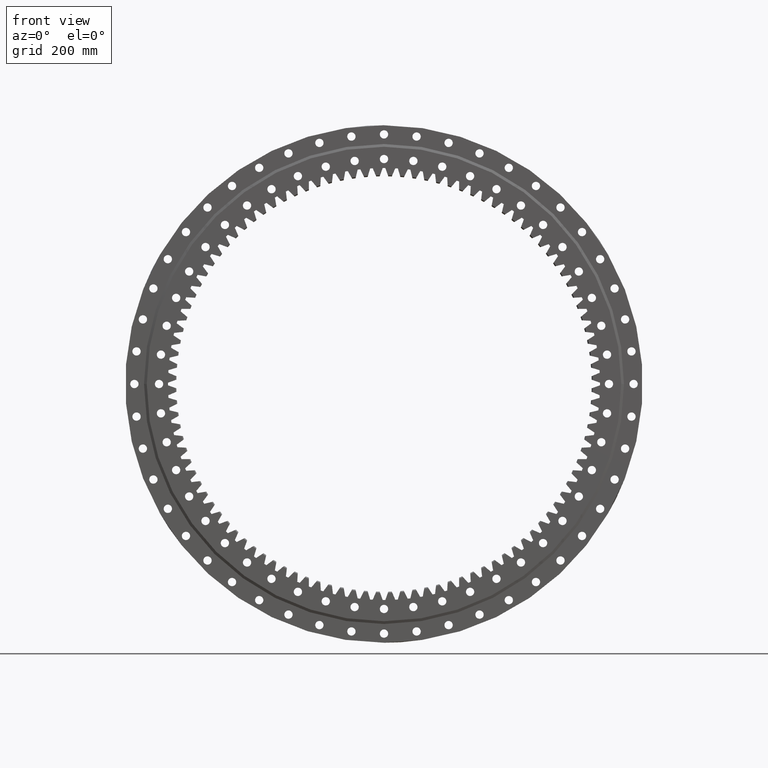
[diagram: clean part render]
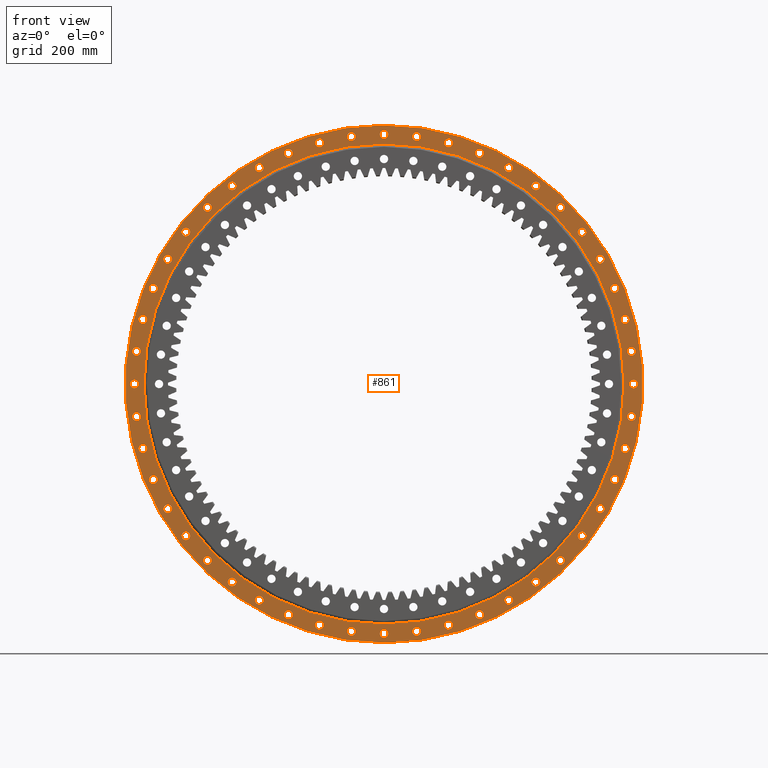
[diagram: same view with one face highlighted and labeled with its STEP entity id]
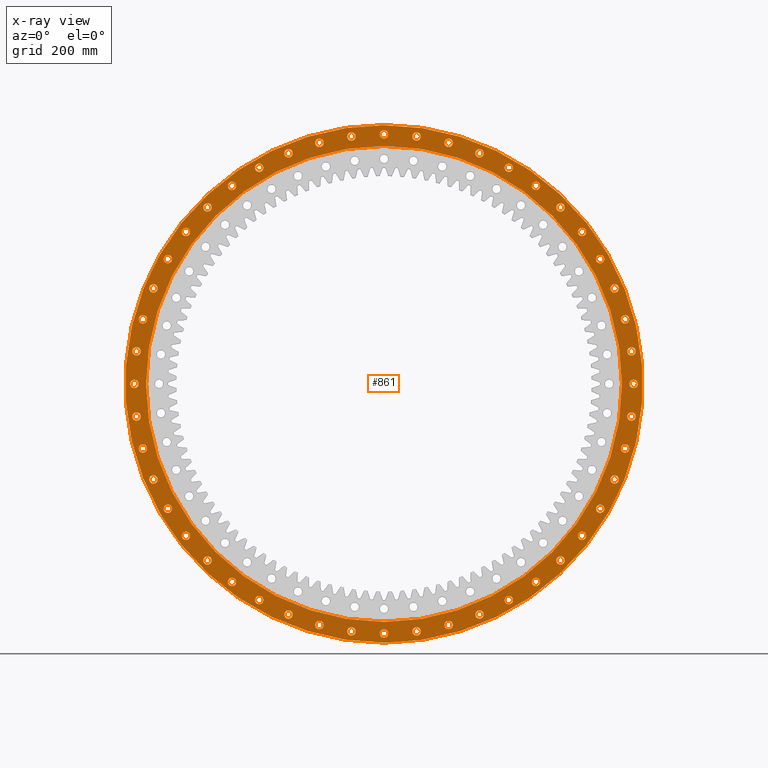
[diagram: x-ray of the same camera — body ghosted, the highlighted face saturated]
A machine part, front view. The second image highlights one B-rep face of the part: STEP entity #861.
The next image is the same camera in x-ray: the body ghosted, the highlighted face saturated — about 0% of this face is hidden behind the body in this view.
In plain terms, the highlighted planar face has unit normal (-0, 1, 0).
Its self-contained STEP definition (entity closure, byte-faithful):
#12 = VERTEX_POINT ( 'NONE', #16346 ) ;
#23 = FACE_BOUND ( 'NONE', #14206, .T. ) ;
#31 = ORIENTED_EDGE ( 'NONE', *, *, #26294, .F. ) ;
#48 = DIRECTION ( 'NONE',  ( 1.173697223544192200E-016, -1.000000000000000000, -3.494217355385783800E-017 ) ) ;
#53 = EDGE_CURVE ( 'NONE', #22569, #27398, #15086, .T. ) ;
#77 = DIRECTION ( 'NONE',  ( -0.7071067811865512400, 0.0000000000000000000, -0.7071067811865438000 ) ) ;
#112 = CARTESIAN_POINT ( 'NONE',  ( 871.2650953127423500, -39.99999999999970200, -248.4547786824646800 ) ) ;
#175 = CIRCLE ( 'NONE', #10190, 15.00000000000002100 ) ;
#275 = EDGE_LOOP ( 'NONE', ( #16369, #7723 ) ) ;
#300 = CARTESIAN_POINT ( 'NONE',  ( 233.4547786824616100, -39.99999999999981500, 886.2650953127429100 ) ) ;
#316 = EDGE_CURVE ( 'NONE', #12, #20455, #27032, .T. ) ;
#346 = EDGE_LOOP ( 'NONE', ( #27191, #10869 ) ) ;
#352 = CARTESIAN_POINT ( 'NONE',  ( -781.1549142135650100, -39.99999999999991500, 435.9999999999977800 ) ) ;
#358 = CIRCLE ( 'NONE', #8089, 15.00000000000004800 ) ;
#359 = DIRECTION ( 'NONE',  ( 1.173697223544192200E-016, -1.000000000000000000, -3.494217355385783800E-017 ) ) ;
#388 = DIRECTION ( 'NONE',  ( 1.173697223544192200E-016, -1.000000000000000000, -3.494217355385783800E-017 ) ) ;
#454 = CIRCLE ( 'NONE', #24266, 15.00000000000002700 ) ;
#458 = CARTESIAN_POINT ( 'NONE',  ( 233.4547786824808200, -39.99999999999975800, -886.2650953127376900 ) ) ;
#464 = DIRECTION ( 'NONE',  ( 0.9238795325112855200, 0.0000000000000000000, -0.3826834323650928300 ) ) ;
#482 = AXIS2_PLACEMENT_3D ( 'NONE', #11737, #24090, #29226 ) ;
#503 = DIRECTION ( 'NONE',  ( -1.000000000000000000, 0.0000000000000000000, 1.052995516776066600E-014 ) ) ;
#534 = ORIENTED_EDGE ( 'NONE', *, *, #11912, .F. ) ;
#546 = VERTEX_POINT ( 'NONE', #17251 ) ;
#550 = EDGE_CURVE ( 'NONE', #24015, #9211, #2389, .T. ) ;
#614 = CARTESIAN_POINT ( 'NONE',  ( 451.0000000000067600, -39.99999999999973000, -781.1549142135597800 ) ) ;
#647 = VERTEX_POINT ( 'NONE', #3438 ) ;
#667 = AXIS2_PLACEMENT_3D ( 'NONE', #4666, #13143, #13112 ) ;
#749 = CARTESIAN_POINT ( 'NONE',  ( -233.4547786824676600, -39.99999999999981500, -871.2650953127413200 ) ) ;
#782 = CARTESIAN_POINT ( 'NONE',  ( -902.0000000000000000, -39.99999999999991500, -3.659520967430143800E-012 ) ) ;
#803 = CARTESIAN_POINT ( 'NONE',  ( -781.1549142135650100, -39.99999999999991500, 465.9999999999977800 ) ) ;
#807 = FACE_BOUND ( 'NONE', #13192, .T. ) ;
#818 = CIRCLE ( 'NONE', #14171, 15.00000000000006000 ) ;
#859 = AXIS2_PLACEMENT_3D ( 'NONE', #7481, #4964, #30093 ) ;
#861 = ADVANCED_FACE ( 'NONE', ( #19563, #1216, #7076, #26998, #6268, #32078, #25424, #18769, #12116, #5480, #31264, #24646, #17983, #11332, #4707, #30497, #23826, #17231, #10573, #3902, #29717, #23057, #16420, #9813, #3124, #28914, #22289, #15644, #9004, #2365, #28119, #21493, #14860, #8234, #1588, #27361, #20693, #14055, #7469, #807, #26578, #19936, #13276, #6673, #23, #25784, #19141, #12500, #5853, #31659 ), #21532, .F. ) ;
#885 = CARTESIAN_POINT ( 'NONE',  ( 902.0000000000000000, -39.99999999999970900, 15.00000000000996500 ) ) ;
#895 = AXIS2_PLACEMENT_3D ( 'NONE', #11400, #24994, #4313 ) ;
#944 = EDGE_CURVE ( 'NONE', #8556, #2580, #21885, .T. ) ;
#962 = DIRECTION ( 'NONE',  ( 1.173697223544192200E-016, -1.000000000000000000, -3.494217355385783800E-017 ) ) ;
#992 = AXIS2_PLACEMENT_3D ( 'NONE', #22315, #7385, #24832 ) ;
#1023 = ORIENTED_EDGE ( 'NONE', *, *, #25166, .F. ) ;
#1035 = DIRECTION ( 'NONE',  ( 1.173697223544192200E-016, -1.000000000000000000, -3.494217355385783800E-017 ) ) ;
#1039 = CARTESIAN_POINT ( 'NONE',  ( -345.1804559933117400, -39.99999999999988600, 818.3393383251803900 ) ) ;
#1042 = CARTESIAN_POINT ( 'NONE',  ( 715.6047129426995100, -39.99999999999970900, -564.1028089658591400 ) ) ;
#1133 = CIRCLE ( 'NONE', #1506, 15.00000000000004800 ) ;
#1144 = ORIENTED_EDGE ( 'NONE', *, *, #30543, .F. ) ;
#1150 = AXIS2_PLACEMENT_3D ( 'NONE', #21865, #11997, #18607 ) ;
#1151 = CARTESIAN_POINT ( 'NONE',  ( 549.1028089658724400, -39.99999999999972300, -700.6047129426891600 ) ) ;
#1166 = VERTEX_POINT ( 'NONE', #27531 ) ;
#1216 = FACE_BOUND ( 'NONE', #18867, .T. ) ;
#1223 = DIRECTION ( 'NONE',  ( 1.173697223544192200E-016, -1.000000000000000000, -3.494217355385783800E-017 ) ) ;
#1248 = AXIS2_PLACEMENT_3D ( 'NONE', #21812, #23190, #23092 ) ;
#1261 = CARTESIAN_POINT ( 'NONE',  ( -637.8103166302674900, -39.99999999999990800, 637.8103166302643100 ) ) ;
#1287 = CARTESIAN_POINT ( 'NONE',  ( 117.7346253824935600, -39.99999999999976600, -894.2832649591761100 ) ) ;
#1310 = DIRECTION ( 'NONE',  ( 1.173697223544192200E-016, -1.000000000000000000, -3.494217355385783800E-017 ) ) ;
#1322 = CARTESIAN_POINT ( 'NONE',  ( -781.1549142135613700, -39.99999999999988600, -451.0000000000040900 ) ) ;
#1350 = ORIENTED_EDGE ( 'NONE', *, *, #16865, .F. ) ;
#1363 = ORIENTED_EDGE ( 'NONE', *, *, #23174, .F. ) ;
#1364 = DIRECTION ( 'NONE',  ( 0.9659258262890689800, 0.0000000000000000000, 0.2588190451025183000 ) ) ;
#1388 = DIRECTION ( 'NONE',  ( 1.173697223544192200E-016, -1.000000000000000000, -3.494217355385783800E-017 ) ) ;
#1393 = DIRECTION ( 'NONE',  ( -0.8660254037844427000, 0.0000000000000000000, -0.4999999999999929500 ) ) ;
#1432 = CARTESIAN_POINT ( 'NONE',  ( 715.6047129426872300, -39.99999999999975100, 564.1028089658749400 ) ) ;
#1474 = EDGE_LOOP ( 'NONE', ( #10311, #31 ) ) ;
#1479 = EDGE_CURVE ( 'NONE', #15873, #546, #15650, .T. ) ;
#1483 = CARTESIAN_POINT ( 'NONE',  ( 549.1028089658724400, -39.99999999999972300, -715.6047129426891600 ) ) ;
#1506 = AXIS2_PLACEMENT_3D ( 'NONE', #27533, #12570, #30053 ) ;
#1562 = DIRECTION ( 'NONE',  ( 0.6087614290087175500, 0.0000000000000000000, -0.7933533402912375000 ) ) ;
#1588 = FACE_BOUND ( 'NONE', #26105, .T. ) ;
#1598 = DIRECTION ( 'NONE',  ( 1.173697223544192200E-016, -1.000000000000000000, -3.494217355385783800E-017 ) ) ;
#1631 = AXIS2_PLACEMENT_3D ( 'NONE', #28338, #27923, #27821 ) ;
#1690 = CARTESIAN_POINT ( 'NONE',  ( -233.4547786824747400, -39.99999999999987200, 871.2650953127392800 ) ) ;
#1799 = EDGE_CURVE ( 'NONE', #25602, #22483, #1980, .T. ) ;
#1844 = EDGE_LOOP ( 'NONE', ( #7345, #8533 ) ) ;
#1953 = AXIS2_PLACEMENT_3D ( 'NONE', #12741, #30236, #15277 ) ;
#1980 = CIRCLE ( 'NONE', #31883, 14.99999999999998900 ) ;
#2001 = DIRECTION ( 'NONE',  ( 1.173697223544192200E-016, -1.000000000000000000, -3.494217355385783800E-017 ) ) ;
#2024 = DIRECTION ( 'NONE',  ( 1.173697223544192200E-016, -1.000000000000000000, -3.494217355385783800E-017 ) ) ;
#2025 = CARTESIAN_POINT ( 'NONE',  ( 637.8103166302577200, -39.99999999999975800, 637.8103166302740900 ) ) ;
#2045 = CARTESIAN_POINT ( 'NONE',  ( -637.8103166302621500, -39.99999999999987200, -622.8103166302696500 ) ) ;
#2256 = CARTESIAN_POINT ( 'NONE',  ( -833.3393383251791400, -39.99999999999989300, -345.1804559933146900 ) ) ;
#2258 = CARTESIAN_POINT ( 'NONE',  ( 4.694788894176747200E-015, -39.99999999999981500, -1.397686942154307100E-015 ) ) ;
#2282 = DIRECTION ( 'NONE',  ( 1.000000000000000000, 0.0000000000000000000, -3.546992490074421600E-015 ) ) ;
#2295 = DIRECTION ( 'NONE',  ( 0.3826834323650834000, 0.0000000000000000000, -0.9238795325112894000 ) ) ;
#2334 = DIRECTION ( 'NONE',  ( 0.8660254037844410400, 0.0000000000000000000, 0.4999999999999957300 ) ) ;
#2340 = ORIENTED_EDGE ( 'NONE', *, *, #26064, .F. ) ;
#2365 = FACE_BOUND ( 'NONE', #26954, .T. ) ;
#2389 = CIRCLE ( 'NONE', #895, 15.00000000000002700 ) ;
#2442 = DIRECTION ( 'NONE',  ( 0.9659258262890675400, 0.0000000000000000000, -0.2588190451025234000 ) ) ;
#2472 = DIRECTION ( 'NONE',  ( 1.173697223544192200E-016, -1.000000000000000000, -3.494217355385783800E-017 ) ) ;
#2495 = ORIENTED_EDGE ( 'NONE', *, *, #20190, .F. ) ;
#2504 = CARTESIAN_POINT ( 'NONE',  ( 871.2650953127423500, -39.99999999999970200, -233.4547786824646800 ) ) ;
#2568 = CARTESIAN_POINT ( 'NONE',  ( 715.6047129426995100, -39.99999999999970900, -534.1028089658591400 ) ) ;
#2580 = VERTEX_POINT ( 'NONE', #22209 ) ;
#2600 = EDGE_CURVE ( 'NONE', #21160, #17418, #29661, .T. ) ;
#2617 = DIRECTION ( 'NONE',  ( 0.9914448613738108300, 0.0000000000000000000, 0.1305261922200481000 ) ) ;
#2716 = EDGE_LOOP ( 'NONE', ( #22603, #29059 ) ) ;
#2790 = CARTESIAN_POINT ( 'NONE',  ( 5.241897460859180000E-014, -39.99999999999984400, 859.7224999999999700 ) ) ;
#2860 = CIRCLE ( 'NONE', #12787, 15.00000000000004800 ) ;
#2866 = DIRECTION ( 'NONE',  ( 0.7071067811865475700, 0.0000000000000000000, 0.7071067811865475700 ) ) ;
#2909 = EDGE_LOOP ( 'NONE', ( #9497, #27979 ) ) ;
#2946 = VERTEX_POINT ( 'NONE', #13041 ) ;
#2953 = CARTESIAN_POINT ( 'NONE',  ( -833.3393383251791400, -39.99999999999989300, -345.1804559933146900 ) ) ;
#2973 = AXIS2_PLACEMENT_3D ( 'NONE', #13804, #31292, #16338 ) ;
#3001 = CIRCLE ( 'NONE', #22330, 14.99999999999998800 ) ;
#3004 = ORIENTED_EDGE ( 'NONE', *, *, #3394, .F. ) ;
#3037 = AXIS2_PLACEMENT_3D ( 'NONE', #26007, #25969, #26076 ) ;
#3102 = DIRECTION ( 'NONE',  ( 0.4999999999999957300, 0.0000000000000000000, -0.8660254037844410400 ) ) ;
#3112 = EDGE_LOOP ( 'NONE', ( #7679, #7633 ) ) ;
#3124 = FACE_BOUND ( 'NONE', #8485, .T. ) ;
#3154 = EDGE_CURVE ( 'NONE', #13373, #28377, #5398, .T. ) ;
#3159 = AXIS2_PLACEMENT_3D ( 'NONE', #25150, #10198, #27639 ) ;
#3160 = DIRECTION ( 'NONE',  ( -0.9659258262890708700, 0.0000000000000000000, -0.2588190451025113600 ) ) ;
#3199 = ORIENTED_EDGE ( 'NONE', *, *, #17416, .F. ) ;
#3262 = AXIS2_PLACEMENT_3D ( 'NONE', #3425, #20894, #5947 ) ;
#3346 = EDGE_CURVE ( 'NONE', #29879, #26031, #32350, .T. ) ;
#3394 = EDGE_CURVE ( 'NONE', #15777, #17052, #15924, .T. ) ;
#3406 = ORIENTED_EDGE ( 'NONE', *, *, #26972, .F. ) ;
#3409 = EDGE_CURVE ( 'NONE', #22751, #31313, #3410, .T. ) ;
#3410 = CIRCLE ( 'NONE', #31480, 14.99999999999998000 ) ;
#3425 = CARTESIAN_POINT ( 'NONE',  ( -637.8103166302621500, -39.99999999999987200, -637.8103166302696500 ) ) ;
#3437 = DIRECTION ( 'NONE',  ( -0.9238795325112817400, 0.0000000000000000000, 0.3826834323651017200 ) ) ;
#3438 = CARTESIAN_POINT ( 'NONE',  ( 781.1549142135683000, -39.99999999999970900, -465.9999999999924400 ) ) ;
#3472 = DIRECTION ( 'NONE',  ( 1.173697223544192200E-016, -1.000000000000000000, -3.494217355385783800E-017 ) ) ;
#3512 = VERTEX_POINT ( 'NONE', #5443 ) ;
#3602 = AXIS2_PLACEMENT_3D ( 'NONE', #1690, #3472, #8163 ) ;
#3614 = CARTESIAN_POINT ( 'NONE',  ( -871.2650953127385900, -39.99999999999990800, -248.4547786824777800 ) ) ;
#3729 = DIRECTION ( 'NONE',  ( 1.173697223544192200E-016, -1.000000000000000000, -3.494217355385783800E-017 ) ) ;
#3733 = DIRECTION ( 'NONE',  ( -0.7071067811865364700, 0.0000000000000000000, 0.7071067811865586700 ) ) ;
#3737 = CARTESIAN_POINT ( 'NONE',  ( -451.0000000000013600, -39.99999999999989300, 796.1549142135628500 ) ) ;
#3856 = CARTESIAN_POINT ( 'NONE',  ( -833.3393383251818700, -39.99999999999992200, 345.1804559933079300 ) ) ;
#3890 = AXIS2_PLACEMENT_3D ( 'NONE', #8958, #8998, #8572 ) ;
#3902 = FACE_BOUND ( 'NONE', #6967, .T. ) ;
#3982 = CIRCLE ( 'NONE', #28365, 14.99999999999998900 ) ;
#4017 = ORIENTED_EDGE ( 'NONE', *, *, #15752, .F. ) ;
#4087 = VERTEX_POINT ( 'NONE', #6593 ) ;
#4124 = DIRECTION ( 'NONE',  ( 1.173697223544192200E-016, -1.000000000000000000, -3.494217355385783800E-017 ) ) ;
#4158 = VERTEX_POINT ( 'NONE', #10803 ) ;
#4313 = DIRECTION ( 'NONE',  ( 0.7933533402912311700, 0.0000000000000000000, -0.6087614290087257600 ) ) ;
#4348 = VERTEX_POINT ( 'NONE', #3614 ) ;
#4357 = EDGE_LOOP ( 'NONE', ( #11216, #27568 ) ) ;
#4384 = CIRCLE ( 'NONE', #27248, 859.7224999999999700 ) ;
#4425 = DIRECTION ( 'NONE',  ( 1.173697223544192200E-016, -1.000000000000000000, -3.494217355385783800E-017 ) ) ;
#4446 = ORIENTED_EDGE ( 'NONE', *, *, #6746, .F. ) ;
#4461 = ORIENTED_EDGE ( 'NONE', *, *, #53, .T. ) ;
#4493 = CARTESIAN_POINT ( 'NONE',  ( 549.1028089658566400, -39.99999999999978000, 730.6047129427013300 ) ) ;
#4546 = VERTEX_POINT ( 'NONE', #28283 ) ;
#4643 = DIRECTION ( 'NONE',  ( 0.8660254037844359300, 0.0000000000000000000, -0.5000000000000045500 ) ) ;
#4666 = CARTESIAN_POINT ( 'NONE',  ( -894.2832649591773600, -39.99999999999992200, 117.7346253824835600 ) ) ;
#4674 = DIRECTION ( 'NONE',  ( 1.173697223544192200E-016, -1.000000000000000000, -3.494217355385783800E-017 ) ) ;
#4704 = CARTESIAN_POINT ( 'NONE',  ( -451.0000000000013600, -39.99999999999989300, 781.1549142135628500 ) ) ;
#4707 = FACE_BOUND ( 'NONE', #11595, .T. ) ;
#4747 = CARTESIAN_POINT ( 'NONE',  ( 833.3393383251766400, -39.99999999999973000, 330.1804559933208300 ) ) ;
#4784 = CARTESIAN_POINT ( 'NONE',  ( 549.1028089658566400, -39.99999999999978000, 715.6047129427013300 ) ) ;
#4831 = CARTESIAN_POINT ( 'NONE',  ( 117.7346253824738100, -39.99999999999983700, 894.2832649591786100 ) ) ;
#4843 = AXIS2_PLACEMENT_3D ( 'NONE', #4784, #7325, #4884 ) ;
#4847 = EDGE_LOOP ( 'NONE', ( #12805, #28545 ) ) ;
#4884 = DIRECTION ( 'NONE',  ( 0.6087614290087212100, 0.0000000000000000000, 0.7933533402912347200 ) ) ;
#4921 = EDGE_LOOP ( 'NONE', ( #3199, #25561 ) ) ;
#4964 = DIRECTION ( 'NONE',  ( 1.173697223544192200E-016, -1.000000000000000000, -3.494217355385783800E-017 ) ) ;
#4990 = CIRCLE ( 'NONE', #28378, 15.00000000000001400 ) ;
#5069 = DIRECTION ( 'NONE',  ( -0.9238795325112817400, 0.0000000000000000000, 0.3826834323651017200 ) ) ;
#5091 = AXIS2_PLACEMENT_3D ( 'NONE', #16972, #2024, #19475 ) ;
#5133 = DIRECTION ( 'NONE',  ( 1.173697223544192200E-016, -1.000000000000000000, -3.494217355385783800E-017 ) ) ;
#5135 = CARTESIAN_POINT ( 'NONE',  ( 894.2832649591757700, -39.99999999999971600, 117.7346253824966600 ) ) ;
#5216 = CIRCLE ( 'NONE', #8927, 15.00000000000004800 ) ;
#5228 = DIRECTION ( 'NONE',  ( 1.173697223544192200E-016, -1.000000000000000000, -3.494217355385783800E-017 ) ) ;
#5250 = CIRCLE ( 'NONE', #19195, 15.00000000000003600 ) ;
#5283 = AXIS2_PLACEMENT_3D ( 'NONE', #25253, #15198, #24923 ) ;
#5373 = ORIENTED_EDGE ( 'NONE', *, *, #16181, .F. ) ;
#5398 = CIRCLE ( 'NONE', #17068, 14.99999999999998800 ) ;
#5401 = CIRCLE ( 'NONE', #23983, 15.00000000000001400 ) ;
#5443 = CARTESIAN_POINT ( 'NONE',  ( 233.4547786824808200, -39.99999999999975800, -856.2650953127376900 ) ) ;
#5459 = DIRECTION ( 'NONE',  ( -0.9238795325112907400, 0.0000000000000000000, -0.3826834323650801800 ) ) ;
#5463 = EDGE_LOOP ( 'NONE', ( #19715, #5829 ) ) ;
#5480 = FACE_BOUND ( 'NONE', #19509, .T. ) ;
#5532 = VERTEX_POINT ( 'NONE', #26880 ) ;
#5558 = CARTESIAN_POINT ( 'NONE',  ( 117.7346253824935800, -39.99999999999976600, -879.2832649591761100 ) ) ;
#5616 = EDGE_LOOP ( 'NONE', ( #2495, #20045 ) ) ;
#5650 = ORIENTED_EDGE ( 'NONE', *, *, #7198, .F. ) ;
#5722 = DIRECTION ( 'NONE',  ( -0.8660254037844328200, 0.0000000000000000000, 0.5000000000000101000 ) ) ;
#5728 = DIRECTION ( 'NONE',  ( 1.173697223544192200E-016, -1.000000000000000000, -3.494217355385783800E-017 ) ) ;
#5756 = CARTESIAN_POINT ( 'NONE',  ( -781.1549142135650100, -39.99999999999991500, 450.9999999999977800 ) ) ;
#5768 = DIRECTION ( 'NONE',  ( 1.173697223544192200E-016, -1.000000000000000000, -3.494217355385783800E-017 ) ) ;
#5825 = ORIENTED_EDGE ( 'NONE', *, *, #9127, .F. ) ;
#5829 = ORIENTED_EDGE ( 'NONE', *, *, #18725, .F. ) ;
#5834 = VERTEX_POINT ( 'NONE', #29716 ) ;
#5853 = FACE_BOUND ( 'NONE', #9656, .T. ) ;
#5862 = EDGE_CURVE ( 'NONE', #8461, #4087, #5250, .T. ) ;
#5871 = DIRECTION ( 'NONE',  ( 1.173697223544192200E-016, -1.000000000000000000, -3.494217355385783800E-017 ) ) ;
#5913 = CARTESIAN_POINT ( 'NONE',  ( -715.6047129426908700, -39.99999999999987900, -549.1028089658703900 ) ) ;
#5947 = DIRECTION ( 'NONE',  ( -0.7071067811865512400, 0.0000000000000000000, -0.7071067811865438000 ) ) ;
#5958 = CARTESIAN_POINT ( 'NONE',  ( 781.1549142135581900, -39.99999999999973700, 466.0000000000095500 ) ) ;
#5971 = CARTESIAN_POINT ( 'NONE',  ( 902.0000000000000000, -39.99999999999970900, 9.955357928818849100E-012 ) ) ;
#5997 = AXIS2_PLACEMENT_3D ( 'NONE', #27443, #12478, #29948 ) ;
#6066 = EDGE_CURVE ( 'NONE', #31313, #22751, #13033, .T. ) ;
#6069 = CARTESIAN_POINT ( 'NONE',  ( -781.1549142135613700, -39.99999999999988600, -451.0000000000040900 ) ) ;
#6259 = CARTESIAN_POINT ( 'NONE',  ( -549.1028089658677800, -39.99999999999990100, 715.6047129426928000 ) ) ;
#6268 = FACE_BOUND ( 'NONE', #13010, .T. ) ;
#6296 = CARTESIAN_POINT ( 'NONE',  ( 117.7346253824738100, -39.99999999999983700, 879.2832649591786100 ) ) ;
#6345 = CARTESIAN_POINT ( 'NONE',  ( 6.804182962045533600E-012, -39.99999999999978000, -917.0000000000000000 ) ) ;
#6360 = CIRCLE ( 'NONE', #7138, 14.99999999999996800 ) ;
#6388 = CARTESIAN_POINT ( 'NONE',  ( 450.9999999999896000, -39.99999999999978700, 781.1549142135696700 ) ) ;
#6427 = DIRECTION ( 'NONE',  ( 1.173697223544192200E-016, -1.000000000000000000, -3.494217355385783800E-017 ) ) ;
#6433 = VERTEX_POINT ( 'NONE', #17402 ) ;
#6467 = EDGE_LOOP ( 'NONE', ( #24014, #27462 ) ) ;
#6470 = DIRECTION ( 'NONE',  ( -1.000000000000000000, 0.0000000000000000000, 1.052995516776066600E-014 ) ) ;
#6502 = ORIENTED_EDGE ( 'NONE', *, *, #8303, .F. ) ;
#6522 = AXIS2_PLACEMENT_3D ( 'NONE', #15316, #359, #17817 ) ;
#6581 = ORIENTED_EDGE ( 'NONE', *, *, #18242, .F. ) ;
#6593 = CARTESIAN_POINT ( 'NONE',  ( 871.2650953127368900, -39.99999999999971600, 218.4547786824838600 ) ) ;
#6598 = AXIS2_PLACEMENT_3D ( 'NONE', #2025, #2001, #2866 ) ;
#6599 = CIRCLE ( 'NONE', #28140, 15.00000000000000500 ) ;
#6620 = CARTESIAN_POINT ( 'NONE',  ( -1.493646987462755500E-013, -39.99999999999978700, -859.7224999999999700 ) ) ;
#6646 = DIRECTION ( 'NONE',  ( 1.173697223544192200E-016, -1.000000000000000000, -3.494217355385783800E-017 ) ) ;
#6673 = FACE_BOUND ( 'NONE', #4357, .T. ) ;
#6703 = DIRECTION ( 'NONE',  ( 0.3826834323650896700, 0.0000000000000000000, 0.9238795325112868500 ) ) ;
#6727 = DIRECTION ( 'NONE',  ( -0.8660254037844328200, 0.0000000000000000000, 0.5000000000000101000 ) ) ;
#6729 = VERTEX_POINT ( 'NONE', #1151 ) ;
#6746 = EDGE_CURVE ( 'NONE', #15589, #17818, #8335, .T. ) ;
#6781 = CARTESIAN_POINT ( 'NONE',  ( 894.2832649591757700, -39.99999999999971600, 132.7346253824966600 ) ) ;
#6834 = CARTESIAN_POINT ( 'NONE',  ( 894.2832649591757700, -39.99999999999971600, 102.7346253824966500 ) ) ;
#6907 = DIRECTION ( 'NONE',  ( 1.173697223544192200E-016, -1.000000000000000000, -3.494217355385783800E-017 ) ) ;
#6948 = CARTESIAN_POINT ( 'NONE',  ( -637.8103166302674900, -39.99999999999990800, 637.8103166302643100 ) ) ;
#6967 = EDGE_LOOP ( 'NONE', ( #17598, #29423 ) ) ;
#6979 = AXIS2_PLACEMENT_3D ( 'NONE', #9201, #24143, #6703 ) ;
#6999 = CIRCLE ( 'NONE', #6522, 15.00000000000004400 ) ;
#7041 = DIRECTION ( 'NONE',  ( 1.173697223544192200E-016, -1.000000000000000000, -3.494217355385783800E-017 ) ) ;
#7076 = FACE_BOUND ( 'NONE', #24849, .T. ) ;
#7125 = CARTESIAN_POINT ( 'NONE',  ( -450.9999999999950500, -39.99999999999984400, -796.1549142135666000 ) ) ;
#7129 = CARTESIAN_POINT ( 'NONE',  ( -871.2650953127385900, -39.99999999999990800, -233.4547786824777800 ) ) ;
#7138 = AXIS2_PLACEMENT_3D ( 'NONE', #26785, #9316, #24267 ) ;
#7144 = CARTESIAN_POINT ( 'NONE',  ( -871.2650953127385900, -39.99999999999990800, -233.4547786824777800 ) ) ;
#7158 = CARTESIAN_POINT ( 'NONE',  ( -781.1549142135650100, -39.99999999999991500, 450.9999999999977800 ) ) ;
#7190 = EDGE_CURVE ( 'NONE', #8102, #8176, #28991, .T. ) ;
#7198 = EDGE_CURVE ( 'NONE', #7433, #27581, #15715, .T. ) ;
#7233 = VERTEX_POINT ( 'NONE', #16955 ) ;
#7264 = CARTESIAN_POINT ( 'NONE',  ( 871.2650953127423500, -39.99999999999970200, -218.4547786824646500 ) ) ;
#7290 = CARTESIAN_POINT ( 'NONE',  ( 345.1804559932997400, -39.99999999999980100, 848.3393383251856200 ) ) ;
#7325 = DIRECTION ( 'NONE',  ( 1.173697223544192200E-016, -1.000000000000000000, -3.494217355385783800E-017 ) ) ;
#7332 = AXIS2_PLACEMENT_3D ( 'NONE', #17582, #17722, #20964 ) ;
#7334 = ORIENTED_EDGE ( 'NONE', *, *, #31002, .F. ) ;
#7345 = ORIENTED_EDGE ( 'NONE', *, *, #30177, .F. ) ;
#7353 = VERTEX_POINT ( 'NONE', #19889 ) ;
#7381 = DIRECTION ( 'NONE',  ( 0.1305261922200517400, 0.0000000000000000000, 0.9914448613738103800 ) ) ;
#7385 = DIRECTION ( 'NONE',  ( 1.173697223544192200E-016, -1.000000000000000000, -3.494217355385783800E-017 ) ) ;
#7390 = EDGE_LOOP ( 'NONE', ( #7334, #21970 ) ) ;
#7415 = CARTESIAN_POINT ( 'NONE',  ( -871.2650953127404100, -39.99999999999992200, 218.4547786824707000 ) ) ;
#7418 = DIRECTION ( 'NONE',  ( -0.3826834323650776200, 0.0000000000000000000, 0.9238795325112918500 ) ) ;
#7433 = VERTEX_POINT ( 'NONE', #21979 ) ;
#7469 = FACE_BOUND ( 'NONE', #14650, .T. ) ;
#7481 = CARTESIAN_POINT ( 'NONE',  ( 6.812134237018673000E-012, -39.99999999999978000, -902.0000000000000000 ) ) ;
#7486 = DIRECTION ( 'NONE',  ( 1.000000000000000000, 0.0000000000000000000, -3.546992490074421600E-015 ) ) ;
#7586 = EDGE_CURVE ( 'NONE', #21926, #28467, #7803, .T. ) ;
#7601 = ORIENTED_EDGE ( 'NONE', *, *, #19226, .F. ) ;
#7633 = ORIENTED_EDGE ( 'NONE', *, *, #8848, .F. ) ;
#7635 = EDGE_CURVE ( 'NONE', #32367, #26308, #358, .T. ) ;
#7672 = VERTEX_POINT ( 'NONE', #27206 ) ;
#7679 = ORIENTED_EDGE ( 'NONE', *, *, #29638, .F. ) ;
#7710 = CIRCLE ( 'NONE', #31749, 15.00000000000000200 ) ;
#7723 = ORIENTED_EDGE ( 'NONE', *, *, #24761, .F. ) ;
#7751 = ORIENTED_EDGE ( 'NONE', *, *, #30440, .F. ) ;
#7803 = CIRCLE ( 'NONE', #3037, 14.99999999999996100 ) ;
#7998 = EDGE_CURVE ( 'NONE', #16532, #17599, #19073, .T. ) ;
#8008 = VERTEX_POINT ( 'NONE', #458 ) ;
#8080 = VERTEX_POINT ( 'NONE', #18651 ) ;
#8089 = AXIS2_PLACEMENT_3D ( 'NONE', #26887, #26853, #26928 ) ;
#8102 = VERTEX_POINT ( 'NONE', #19091 ) ;
#8127 = DIRECTION ( 'NONE',  ( -0.7933533402912410500, 0.0000000000000000000, -0.6087614290087130000 ) ) ;
#8163 = DIRECTION ( 'NONE',  ( -0.2588190451025079200, 0.0000000000000000000, 0.9659258262890717500 ) ) ;
#8176 = VERTEX_POINT ( 'NONE', #4747 ) ;
#8234 = FACE_BOUND ( 'NONE', #16599, .T. ) ;
#8268 = ORIENTED_EDGE ( 'NONE', *, *, #7586, .F. ) ;
#8303 = EDGE_CURVE ( 'NONE', #4546, #26645, #31973, .T. ) ;
#8335 = CIRCLE ( 'NONE', #6598, 15.00000000000006600 ) ;
#8461 = VERTEX_POINT ( 'NONE', #11766 ) ;
#8485 = EDGE_LOOP ( 'NONE', ( #15787, #7601 ) ) ;
#8489 = DIRECTION ( 'NONE',  ( -0.7933533402912248400, 0.0000000000000000000, 0.6087614290087340900 ) ) ;
#8533 = ORIENTED_EDGE ( 'NONE', *, *, #8789, .F. ) ;
#8556 = VERTEX_POINT ( 'NONE', #7415 ) ;
#8572 = DIRECTION ( 'NONE',  ( -0.1305261922200380800, 0.0000000000000000000, 0.9914448613738121600 ) ) ;
#8599 = ORIENTED_EDGE ( 'NONE', *, *, #29890, .F. ) ;
#8642 = CIRCLE ( 'NONE', #1150, 14.99999999999998400 ) ;
#8663 = EDGE_CURVE ( 'NONE', #13298, #24475, #13545, .T. ) ;
#8699 = CIRCLE ( 'NONE', #859, 15.00000000000001400 ) ;
#8783 = DIRECTION ( 'NONE',  ( -0.6087614290087130000, 0.0000000000000000000, 0.7933533402912410500 ) ) ;
#8789 = EDGE_CURVE ( 'NONE', #9068, #19242, #3001, .T. ) ;
#8848 = EDGE_CURVE ( 'NONE', #7353, #4158, #12770, .T. ) ;
#8851 = VERTEX_POINT ( 'NONE', #29446 ) ;
#8867 = DIRECTION ( 'NONE',  ( 0.8660254037844410400, 0.0000000000000000000, 0.4999999999999957300 ) ) ;
#8903 = DIRECTION ( 'NONE',  ( 0.5000000000000017800, 0.0000000000000000000, 0.8660254037844376000 ) ) ;
#8907 = CIRCLE ( 'NONE', #13436, 15.00000000000003000 ) ;
#8927 = AXIS2_PLACEMENT_3D ( 'NONE', #4831, #22313, #7381 ) ;
#8949 = ORIENTED_EDGE ( 'NONE', *, *, #944, .F. ) ;
#8958 = CARTESIAN_POINT ( 'NONE',  ( -117.7346253824876900, -39.99999999999986500, 894.2832649591769000 ) ) ;
#8991 = CARTESIAN_POINT ( 'NONE',  ( -902.0000000000000000, -39.99999999999991500, -3.659520967430143800E-012 ) ) ;
#8998 = DIRECTION ( 'NONE',  ( 1.173697223544192200E-016, -1.000000000000000000, -3.494217355385783800E-017 ) ) ;
#9004 = FACE_BOUND ( 'NONE', #1844, .T. ) ;
#9068 = VERTEX_POINT ( 'NONE', #24970 ) ;
#9101 = CIRCLE ( 'NONE', #23831, 14.99999999999998000 ) ;
#9127 = EDGE_CURVE ( 'NONE', #10170, #6433, #7710, .T. ) ;
#9201 = CARTESIAN_POINT ( 'NONE',  ( 345.1804559932997400, -39.99999999999980100, 833.3393383251856200 ) ) ;
#9211 = VERTEX_POINT ( 'NONE', #2568 ) ;
#9228 = CIRCLE ( 'NONE', #23292, 14.99999999999998800 ) ;
#9253 = DIRECTION ( 'NONE',  ( 5.551115123125782700E-017, -3.228434246588744100E-017, 1.000000000000000000 ) ) ;
#9316 = DIRECTION ( 'NONE',  ( 1.173697223544192200E-016, -1.000000000000000000, -3.494217355385783800E-017 ) ) ;
#9389 = EDGE_CURVE ( 'NONE', #17607, #18437, #27966, .T. ) ;
#9497 = ORIENTED_EDGE ( 'NONE', *, *, #15353, .F. ) ;
#9504 = EDGE_LOOP ( 'NONE', ( #534, #23690 ) ) ;
#9535 = ORIENTED_EDGE ( 'NONE', *, *, #27035, .F. ) ;
#9589 = CARTESIAN_POINT ( 'NONE',  ( -117.7346253824876900, -39.99999999999986500, 909.2832649591769000 ) ) ;
#9635 = DIRECTION ( 'NONE',  ( -0.9659258262890708700, 0.0000000000000000000, -0.2588190451025113600 ) ) ;
#9656 = EDGE_LOOP ( 'NONE', ( #5373, #2340 ) ) ;
#9673 = EDGE_CURVE ( 'NONE', #7672, #21861, #10019, .T. ) ;
#9689 = CARTESIAN_POINT ( 'NONE',  ( -1.310137699450333300E-011, -39.99999999999985100, 902.0000000000000000 ) ) ;
#9791 = DIRECTION ( 'NONE',  ( 0.7071067811865438000, 0.0000000000000000000, -0.7071067811865512400 ) ) ;
#9813 = FACE_BOUND ( 'NONE', #28665, .T. ) ;
#9817 = AXIS2_PLACEMENT_3D ( 'NONE', #7129, #24575, #9635 ) ;
#9829 = DIRECTION ( 'NONE',  ( 1.173697223544192200E-016, -1.000000000000000000, -3.494217355385783800E-017 ) ) ;
#9848 = VERTEX_POINT ( 'NONE', #13062 ) ;
#9852 = CARTESIAN_POINT ( 'NONE',  ( 637.8103166302719300, -39.99999999999971600, -637.8103166302598800 ) ) ;
#9867 = DIRECTION ( 'NONE',  ( 1.173697223544192200E-016, -1.000000000000000000, -3.494217355385783800E-017 ) ) ;
#9882 = CIRCLE ( 'NONE', #992, 14.99999999999996800 ) ;
#9901 = DIRECTION ( 'NONE',  ( 5.551115123120728400E-017, 0.0000000000000000000, 1.000000000000000000 ) ) ;
#9937 = EDGE_CURVE ( 'NONE', #17052, #15777, #15448, .T. ) ;
#10019 = CIRCLE ( 'NONE', #30510, 15.00000000000003400 ) ;
#10051 = CIRCLE ( 'NONE', #27278, 15.00000000000003000 ) ;
#10145 = CIRCLE ( 'NONE', #27625, 15.00000000000006400 ) ;
#10168 = CIRCLE ( 'NONE', #11716, 15.00000000000002700 ) ;
#10170 = VERTEX_POINT ( 'NONE', #28529 ) ;
#10190 = AXIS2_PLACEMENT_3D ( 'NONE', #27051, #12053, #29554 ) ;
#10198 = DIRECTION ( 'NONE',  ( 1.173697223544192200E-016, -1.000000000000000000, -3.494217355385783800E-017 ) ) ;
#10311 = ORIENTED_EDGE ( 'NONE', *, *, #25498, .F. ) ;
#10411 = CARTESIAN_POINT ( 'NONE',  ( -233.4547786824747400, -39.99999999999987200, 886.2650953127393900 ) ) ;
#10494 = AXIS2_PLACEMENT_3D ( 'NONE', #29306, #14319, #31805 ) ;
#10501 = AXIS2_PLACEMENT_3D ( 'NONE', #31081, #30874, #30657 ) ;
#10573 = FACE_BOUND ( 'NONE', #14330, .T. ) ;
#10578 = CARTESIAN_POINT ( 'NONE',  ( 117.7346253824935600, -39.99999999999976600, -894.2832649591761100 ) ) ;
#10612 = CARTESIAN_POINT ( 'NONE',  ( -833.3393383251818700, -39.99999999999992200, 330.1804559933079300 ) ) ;
#10631 = CIRCLE ( 'NONE', #24285, 14.99999999999998900 ) ;
#10705 = EDGE_CURVE ( 'NONE', #31112, #16512, #29866, .T. ) ;
#10721 = CARTESIAN_POINT ( 'NONE',  ( 117.7346253824738100, -39.99999999999983700, 909.2832649591786100 ) ) ;
#10763 = ORIENTED_EDGE ( 'NONE', *, *, #11106, .F. ) ;
#10796 = DIRECTION ( 'NONE',  ( 1.173697223544192200E-016, -1.000000000000000000, -3.494217355385783800E-017 ) ) ;
#10803 = CARTESIAN_POINT ( 'NONE',  ( 894.2832649591781500, -39.99999999999970200, -102.7346253824769200 ) ) ;
#10860 = CARTESIAN_POINT ( 'NONE',  ( 5.659771529540282600E-014, -39.99999999999985100, 935.0000000000000000 ) ) ;
#10869 = ORIENTED_EDGE ( 'NONE', *, *, #11824, .F. ) ;
#10986 = DIRECTION ( 'NONE',  ( 1.173697223544192200E-016, -1.000000000000000000, -3.494217355385783800E-017 ) ) ;
#11011 = EDGE_CURVE ( 'NONE', #18337, #24176, #28649, .T. ) ;
#11074 = EDGE_CURVE ( 'NONE', #21230, #24339, #14599, .T. ) ;
#11106 = EDGE_CURVE ( 'NONE', #17599, #16532, #26313, .T. ) ;
#11114 = AXIS2_PLACEMENT_3D ( 'NONE', #2953, #4124, #5459 ) ;
#11121 = CARTESIAN_POINT ( 'NONE',  ( 902.0000000000000000, -39.99999999999970900, -14.99999999999005600 ) ) ;
#11124 = VERTEX_POINT ( 'NONE', #12790 ) ;
#11216 = ORIENTED_EDGE ( 'NONE', *, *, #24643, .F. ) ;
#11332 = FACE_BOUND ( 'NONE', #19456, .T. ) ;
#11362 = ORIENTED_EDGE ( 'NONE', *, *, #7635, .F. ) ;
#11364 = CIRCLE ( 'NONE', #3602, 14.99999999999999300 ) ;
#11388 = CIRCLE ( 'NONE', #19256, 14.99999999999998400 ) ;
#11400 = CARTESIAN_POINT ( 'NONE',  ( 715.6047129426995100, -39.99999999999970900, -549.1028089658591400 ) ) ;
#11557 = EDGE_LOOP ( 'NONE', ( #24053, #13375 ) ) ;
#11562 = ORIENTED_EDGE ( 'NONE', *, *, #13578, .F. ) ;
#11565 = EDGE_CURVE ( 'NONE', #4348, #16816, #25146, .T. ) ;
#11595 = EDGE_LOOP ( 'NONE', ( #25034, #7751 ) ) ;
#11607 = CARTESIAN_POINT ( 'NONE',  ( -833.3393383251818700, -39.99999999999992200, 345.1804559933079300 ) ) ;
#11689 = EDGE_CURVE ( 'NONE', #18414, #8080, #6360, .T. ) ;
#11716 = AXIS2_PLACEMENT_3D ( 'NONE', #14586, #32083, #17119 ) ;
#11737 = CARTESIAN_POINT ( 'NONE',  ( 450.9999999999896000, -39.99999999999978700, 781.1549142135696700 ) ) ;
#11766 = CARTESIAN_POINT ( 'NONE',  ( 871.2650953127368900, -39.99999999999971600, 248.4547786824838900 ) ) ;
#11781 = DIRECTION ( 'NONE',  ( 1.173697223544192200E-016, -1.000000000000000000, -3.494217355385783800E-017 ) ) ;
#11824 = EDGE_CURVE ( 'NONE', #5834, #32402, #9101, .T. ) ;
#11912 = EDGE_CURVE ( 'NONE', #17376, #21019, #14147, .T. ) ;
#11997 = DIRECTION ( 'NONE',  ( 1.173697223544192200E-016, -1.000000000000000000, -3.494217355385783800E-017 ) ) ;
#12009 = CIRCLE ( 'NONE', #667, 14.99999999999996100 ) ;
#12053 = DIRECTION ( 'NONE',  ( 1.173697223544192200E-016, -1.000000000000000000, -3.494217355385783800E-017 ) ) ;
#12106 = AXIS2_PLACEMENT_3D ( 'NONE', #24422, #24414, #24502 ) ;
#12116 = FACE_BOUND ( 'NONE', #21435, .T. ) ;
#12158 = EDGE_CURVE ( 'NONE', #30828, #16241, #8699, .T. ) ;
#12199 = DIRECTION ( 'NONE',  ( -0.8660254037844427000, 0.0000000000000000000, -0.4999999999999929500 ) ) ;
#12329 = EDGE_CURVE ( 'NONE', #7233, #11124, #11388, .T. ) ;
#12353 = EDGE_CURVE ( 'NONE', #22483, #25602, #10631, .T. ) ;
#12478 = DIRECTION ( 'NONE',  ( 1.173697223544192200E-016, -1.000000000000000000, -3.494217355385783800E-017 ) ) ;
#12498 = AXIS2_PLACEMENT_3D ( 'NONE', #15185, #5768, #23238 ) ;
#12499 = CARTESIAN_POINT ( 'NONE',  ( 233.4547786824616100, -39.99999999999981500, 856.2650953127429100 ) ) ;
#12500 = FACE_BOUND ( 'NONE', #14972, .T. ) ;
#12570 = DIRECTION ( 'NONE',  ( 1.173697223544192200E-016, -1.000000000000000000, -3.494217355385783800E-017 ) ) ;
#12648 = ORIENTED_EDGE ( 'NONE', *, *, #18254, .F. ) ;
#12741 = CARTESIAN_POINT ( 'NONE',  ( 4.694788894176747200E-015, -39.99999999999981500, -1.397686942154307100E-015 ) ) ;
#12770 = CIRCLE ( 'NONE', #1631, 15.00000000000005500 ) ;
#12787 = AXIS2_PLACEMENT_3D ( 'NONE', #31107, #31425, #464 ) ;
#12790 = CARTESIAN_POINT ( 'NONE',  ( -637.8103166302674900, -39.99999999999990800, 622.8103166302643100 ) ) ;
#12805 = ORIENTED_EDGE ( 'NONE', *, *, #29322, .F. ) ;
#12812 = DIRECTION ( 'NONE',  ( -0.9238795325112907400, 0.0000000000000000000, -0.3826834323650801800 ) ) ;
#12837 = DIRECTION ( 'NONE',  ( 1.173697223544192200E-016, -1.000000000000000000, -3.494217355385783800E-017 ) ) ;
#12859 = AXIS2_PLACEMENT_3D ( 'NONE', #31970, #14491, #29453 ) ;
#12887 = AXIS2_PLACEMENT_3D ( 'NONE', #15976, #1035, #18482 ) ;
#12907 = CIRCLE ( 'NONE', #29112, 14.99999999999997900 ) ;
#12932 = AXIS2_PLACEMENT_3D ( 'NONE', #13693, #31165, #16220 ) ;
#13010 = EDGE_LOOP ( 'NONE', ( #31285, #4446 ) ) ;
#13033 = CIRCLE ( 'NONE', #23580, 14.99999999999998000 ) ;
#13041 = CARTESIAN_POINT ( 'NONE',  ( 781.1549142135683000, -39.99999999999970900, -435.9999999999923800 ) ) ;
#13058 = DIRECTION ( 'NONE',  ( 0.1305261922200444700, 0.0000000000000000000, -0.9914448613738112700 ) ) ;
#13062 = CARTESIAN_POINT ( 'NONE',  ( -117.7346253824800300, -39.99999999999979400, -879.2832649591778100 ) ) ;
#13067 = ORIENTED_EDGE ( 'NONE', *, *, #10705, .F. ) ;
#13073 = VERTEX_POINT ( 'NONE', #6781 ) ;
#13084 = VERTEX_POINT ( 'NONE', #11121 ) ;
#13112 = DIRECTION ( 'NONE',  ( -0.9914448613738088300, 0.0000000000000000000, 0.1305261922200636200 ) ) ;
#13143 = DIRECTION ( 'NONE',  ( 1.173697223544192200E-016, -1.000000000000000000, -3.494217355385783800E-017 ) ) ;
#13192 = EDGE_LOOP ( 'NONE', ( #21536, #5650 ) ) ;
#13265 = CIRCLE ( 'NONE', #17956, 14.99999999999996100 ) ;
#13276 = FACE_BOUND ( 'NONE', #2909, .T. ) ;
#13298 = VERTEX_POINT ( 'NONE', #24673 ) ;
#13356 = EDGE_CURVE ( 'NONE', #2580, #8556, #12907, .T. ) ;
#13373 = VERTEX_POINT ( 'NONE', #28544 ) ;
#13375 = ORIENTED_EDGE ( 'NONE', *, *, #1799, .F. ) ;
#13436 = AXIS2_PLACEMENT_3D ( 'NONE', #32256, #17303, #2334 ) ;
#13494 = ORIENTED_EDGE ( 'NONE', *, *, #14656, .T. ) ;
#13545 = CIRCLE ( 'NONE', #3890, 15.00000000000002100 ) ;
#13578 = EDGE_CURVE ( 'NONE', #19921, #6729, #28917, .T. ) ;
#13605 = CARTESIAN_POINT ( 'NONE',  ( -1.310932826947647200E-011, -39.99999999999985100, 887.0000000000000000 ) ) ;
#13655 = ORIENTED_EDGE ( 'NONE', *, *, #16943, .F. ) ;
#13693 = CARTESIAN_POINT ( 'NONE',  ( 6.812134237018673000E-012, -39.99999999999978000, -902.0000000000000000 ) ) ;
#13774 = CARTESIAN_POINT ( 'NONE',  ( -450.9999999999950500, -39.99999999999984400, -781.1549142135664900 ) ) ;
#13798 = CIRCLE ( 'NONE', #20718, 14.99999999999997500 ) ;
#13803 = DIRECTION ( 'NONE',  ( 1.173697223544192200E-016, -1.000000000000000000, -3.494217355385783800E-017 ) ) ;
#13804 = CARTESIAN_POINT ( 'NONE',  ( 233.4547786824808200, -39.99999999999975800, -871.2650953127376900 ) ) ;
#13825 = CARTESIAN_POINT ( 'NONE',  ( 345.1804559932997400, -39.99999999999980100, 818.3393383251856200 ) ) ;
#13826 = CARTESIAN_POINT ( 'NONE',  ( -715.6047129426908700, -39.99999999999987900, -564.1028089658703900 ) ) ;
#13883 = AXIS2_PLACEMENT_3D ( 'NONE', #28235, #10796, #25743 ) ;
#14055 = FACE_BOUND ( 'NONE', #11557, .T. ) ;
#14102 = CARTESIAN_POINT ( 'NONE',  ( 637.8103166302719300, -39.99999999999971600, -637.8103166302598800 ) ) ;
#14147 = CIRCLE ( 'NONE', #32235, 14.99999999999996300 ) ;
#14171 = AXIS2_PLACEMENT_3D ( 'NONE', #16262, #1310, #18768 ) ;
#14185 = ORIENTED_EDGE ( 'NONE', *, *, #3409, .F. ) ;
#14206 = EDGE_LOOP ( 'NONE', ( #19631, #1350 ) ) ;
#14270 = DIRECTION ( 'NONE',  ( 1.173697223544192200E-016, -1.000000000000000000, -3.494217355385783800E-017 ) ) ;
#14288 = CIRCLE ( 'NONE', #12498, 15.00000000000002800 ) ;
#14299 = EDGE_CURVE ( 'NONE', #22704, #28263, #10145, .T. ) ;
#14319 = DIRECTION ( 'NONE',  ( 1.173697223544192200E-016, -1.000000000000000000, -3.494217355385783800E-017 ) ) ;
#14324 = AXIS2_PLACEMENT_3D ( 'NONE', #24356, #6907, #21851 ) ;
#14330 = EDGE_LOOP ( 'NONE', ( #14608, #32278 ) ) ;
#14400 = DIRECTION ( 'NONE',  ( 0.1305261922200444700, 0.0000000000000000000, -0.9914448613738112700 ) ) ;
#14465 = DIRECTION ( 'NONE',  ( 1.173697223544192200E-016, -1.000000000000000000, -3.494217355385783800E-017 ) ) ;
#14491 = DIRECTION ( 'NONE',  ( 1.173697223544192200E-016, -1.000000000000000000, -3.494217355385783800E-017 ) ) ;
#14560 = CARTESIAN_POINT ( 'NONE',  ( 781.1549142135683000, -39.99999999999970900, -450.9999999999923800 ) ) ;
#14586 = CARTESIAN_POINT ( 'NONE',  ( -549.1028089658616400, -39.99999999999985100, -715.6047129426975700 ) ) ;
#14599 = CIRCLE ( 'NONE', #15678, 15.00000000000002700 ) ;
#14608 = ORIENTED_EDGE ( 'NONE', *, *, #27851, .F. ) ;
#14650 = EDGE_LOOP ( 'NONE', ( #15067, #3004 ) ) ;
#14656 = EDGE_CURVE ( 'NONE', #27398, #22569, #16361, .T. ) ;
#14688 = EDGE_CURVE ( 'NONE', #32402, #5834, #22227, .T. ) ;
#14693 = DIRECTION ( 'NONE',  ( 1.173697223544192200E-016, -1.000000000000000000, -3.494217355385783800E-017 ) ) ;
#14721 = CARTESIAN_POINT ( 'NONE',  ( 902.0000000000000000, -39.99999999999970900, 9.955357928818849100E-012 ) ) ;
#14766 = ORIENTED_EDGE ( 'NONE', *, *, #5862, .F. ) ;
#14843 = CARTESIAN_POINT ( 'NONE',  ( 715.6047129426995100, -39.99999999999970900, -549.1028089658591400 ) ) ;
#14849 = DIRECTION ( 'NONE',  ( 0.4999999999999957300, 0.0000000000000000000, -0.8660254037844410400 ) ) ;
#14860 = FACE_BOUND ( 'NONE', #7390, .T. ) ;
#14875 = DIRECTION ( 'NONE',  ( 0.7933533402912311700, 0.0000000000000000000, -0.6087614290087257600 ) ) ;
#14879 = CARTESIAN_POINT ( 'NONE',  ( -345.1804559933117400, -39.99999999999988600, 848.3393383251803900 ) ) ;
#14972 = EDGE_LOOP ( 'NONE', ( #26391, #10763 ) ) ;
#15067 = ORIENTED_EDGE ( 'NONE', *, *, #9937, .F. ) ;
#15079 = EDGE_CURVE ( 'NONE', #28467, #21926, #12009, .T. ) ;
#15086 = CIRCLE ( 'NONE', #10501, 935.0000000000000000 ) ;
#15185 = CARTESIAN_POINT ( 'NONE',  ( -894.2832649591765600, -39.99999999999990800, -117.7346253824908300 ) ) ;
#15198 = DIRECTION ( 'NONE',  ( -1.173697223544192200E-016, 1.000000000000000000, 3.494217355385783800E-017 ) ) ;
#15277 = DIRECTION ( 'NONE',  ( 5.551115123125782700E-017, -3.228434246588744100E-017, 1.000000000000000000 ) ) ;
#15316 = CARTESIAN_POINT ( 'NONE',  ( 233.4547786824616100, -39.99999999999981500, 871.2650953127429100 ) ) ;
#15327 = AXIS2_PLACEMENT_3D ( 'NONE', #10578, #28021, #13058 ) ;
#15353 = EDGE_CURVE ( 'NONE', #24176, #18337, #13798, .T. ) ;
#15359 = CIRCLE ( 'NONE', #11114, 14.99999999999996300 ) ;
#15365 = CARTESIAN_POINT ( 'NONE',  ( 549.1028089658724400, -39.99999999999972300, -730.6047129426891600 ) ) ;
#15394 = DIRECTION ( 'NONE',  ( 1.173697223544192200E-016, -1.000000000000000000, -3.494217355385783800E-017 ) ) ;
#15448 = CIRCLE ( 'NONE', #21505, 15.00000000000004400 ) ;
#15521 = ORIENTED_EDGE ( 'NONE', *, *, #6066, .F. ) ;
#15554 = ORIENTED_EDGE ( 'NONE', *, *, #28095, .F. ) ;
#15582 = CIRCLE ( 'NONE', #18036, 15.00000000000002700 ) ;
#15589 = VERTEX_POINT ( 'NONE', #17549 ) ;
#15590 = ORIENTED_EDGE ( 'NONE', *, *, #316, .F. ) ;
#15610 = EDGE_CURVE ( 'NONE', #27581, #7433, #25906, .T. ) ;
#15644 = FACE_BOUND ( 'NONE', #275, .T. ) ;
#15650 = CIRCLE ( 'NONE', #30821, 15.00000000000003000 ) ;
#15656 = DIRECTION ( 'NONE',  ( 1.173697223544192200E-016, -1.000000000000000000, -3.494217355385783800E-017 ) ) ;
#15663 = CARTESIAN_POINT ( 'NONE',  ( 833.3393383251766400, -39.99999999999973000, 345.1804559933208900 ) ) ;
#15678 = AXIS2_PLACEMENT_3D ( 'NONE', #24690, #27545, #27504 ) ;
#15698 = DIRECTION ( 'NONE',  ( 1.173697223544192200E-016, -1.000000000000000000, -3.494217355385783800E-017 ) ) ;
#15715 = CIRCLE ( 'NONE', #31072, 15.00000000000000500 ) ;
#15752 = EDGE_CURVE ( 'NONE', #30542, #27631, #2860, .T. ) ;
#15764 = EDGE_CURVE ( 'NONE', #21019, #17376, #15359, .T. ) ;
#15777 = VERTEX_POINT ( 'NONE', #352 ) ;
#15787 = ORIENTED_EDGE ( 'NONE', *, *, #9389, .F. ) ;
#15814 = AXIS2_PLACEMENT_3D ( 'NONE', #9689, #9867, #9901 ) ;
#15873 = VERTEX_POINT ( 'NONE', #5958 ) ;
#15905 = DIRECTION ( 'NONE',  ( 0.9238795325112880700, 0.0000000000000000000, 0.3826834323650865100 ) ) ;
#15921 = EDGE_CURVE ( 'NONE', #16589, #23116, #18072, .T. ) ;
#15924 = CIRCLE ( 'NONE', #26464, 15.00000000000004400 ) ;
#15937 = ORIENTED_EDGE ( 'NONE', *, *, #550, .F. ) ;
#15971 = DIRECTION ( 'NONE',  ( -0.7933533402912248400, 0.0000000000000000000, 0.6087614290087340900 ) ) ;
#15975 = DIRECTION ( 'NONE',  ( 1.173697223544192200E-016, -1.000000000000000000, -3.494217355385783800E-017 ) ) ;
#15976 = CARTESIAN_POINT ( 'NONE',  ( 894.2832649591781500, -39.99999999999970200, -117.7346253824769300 ) ) ;
#16022 = CIRCLE ( 'NONE', #27304, 15.00000000000004100 ) ;
#16082 = CARTESIAN_POINT ( 'NONE',  ( -715.6047129426955300, -39.99999999999991500, 549.1028089658644800 ) ) ;
#16115 = CARTESIAN_POINT ( 'NONE',  ( -871.2650953127404100, -39.99999999999992200, 233.4547786824707300 ) ) ;
#16159 = CARTESIAN_POINT ( 'NONE',  ( -715.6047129426908700, -39.99999999999987900, -534.1028089658703900 ) ) ;
#16164 = VERTEX_POINT ( 'NONE', #2790 ) ;
#16181 = EDGE_CURVE ( 'NONE', #16164, #31966, #4384, .T. ) ;
#16193 = EDGE_LOOP ( 'NONE', ( #11362, #8599 ) ) ;
#16220 = DIRECTION ( 'NONE',  ( -7.038473828917530800E-015, 0.0000000000000000000, -1.000000000000000000 ) ) ;
#16241 = VERTEX_POINT ( 'NONE', #30410 ) ;
#16258 = EDGE_LOOP ( 'NONE', ( #22955, #1023 ) ) ;
#16262 = CARTESIAN_POINT ( 'NONE',  ( -117.7346253824800500, -39.99999999999979400, -894.2832649591778100 ) ) ;
#16312 = EDGE_LOOP ( 'NONE', ( #27166, #24347 ) ) ;
#16338 = DIRECTION ( 'NONE',  ( 0.2588190451025148000, 0.0000000000000000000, -0.9659258262890699800 ) ) ;
#16346 = CARTESIAN_POINT ( 'NONE',  ( 549.1028089658566400, -39.99999999999978000, 700.6047129427013300 ) ) ;
#16361 = CIRCLE ( 'NONE', #32048, 935.0000000000000000 ) ;
#16367 = VERTEX_POINT ( 'NONE', #7125 ) ;
#16369 = ORIENTED_EDGE ( 'NONE', *, *, #26435, .F. ) ;
#16372 = CARTESIAN_POINT ( 'NONE',  ( 233.4547786824616100, -39.99999999999981500, 871.2650953127429100 ) ) ;
#16420 = FACE_BOUND ( 'NONE', #30065, .T. ) ;
#16435 = AXIS2_PLACEMENT_3D ( 'NONE', #32221, #17265, #2295 ) ;
#16456 = DIRECTION ( 'NONE',  ( 1.173697223544192200E-016, -1.000000000000000000, -3.494217355385783800E-017 ) ) ;
#16512 = VERTEX_POINT ( 'NONE', #1432 ) ;
#16532 = VERTEX_POINT ( 'NONE', #18995 ) ;
#16589 = VERTEX_POINT ( 'NONE', #16712 ) ;
#16599 = EDGE_LOOP ( 'NONE', ( #19326, #30479 ) ) ;
#16633 = DIRECTION ( 'NONE',  ( 0.7071067811865438000, 0.0000000000000000000, -0.7071067811865512400 ) ) ;
#16652 = CARTESIAN_POINT ( 'NONE',  ( 345.1804559933179900, -39.99999999999974400, -818.3393383251777800 ) ) ;
#16712 = CARTESIAN_POINT ( 'NONE',  ( 450.9999999999896000, -39.99999999999978700, 796.1549142135696700 ) ) ;
#16764 = EDGE_CURVE ( 'NONE', #27534, #19225, #21144, .T. ) ;
#16816 = VERTEX_POINT ( 'NONE', #25810 ) ;
#16865 = EDGE_CURVE ( 'NONE', #26427, #32292, #11364, .T. ) ;
#16893 = AXIS2_PLACEMENT_3D ( 'NONE', #749, #15698, #26041 ) ;
#16943 = EDGE_CURVE ( 'NONE', #24339, #21230, #17263, .T. ) ;
#16955 = CARTESIAN_POINT ( 'NONE',  ( -637.8103166302674900, -39.99999999999990800, 652.8103166302643100 ) ) ;
#16972 = CARTESIAN_POINT ( 'NONE',  ( -117.7346253824800500, -39.99999999999979400, -894.2832649591778100 ) ) ;
#17020 = AXIS2_PLACEMENT_3D ( 'NONE', #25556, #25458, #25351 ) ;
#17052 = VERTEX_POINT ( 'NONE', #803 ) ;
#17068 = AXIS2_PLACEMENT_3D ( 'NONE', #9852, #9829, #9791 ) ;
#17096 = DIRECTION ( 'NONE',  ( 0.8660254037844359300, 0.0000000000000000000, -0.5000000000000045500 ) ) ;
#17119 = DIRECTION ( 'NONE',  ( -0.6087614290087257600, 0.0000000000000000000, -0.7933533402912311700 ) ) ;
#17124 = CARTESIAN_POINT ( 'NONE',  ( 833.3393383251843700, -39.99999999999970200, -360.1804559933026400 ) ) ;
#17231 = FACE_BOUND ( 'NONE', #19826, .T. ) ;
#17232 = DIRECTION ( 'NONE',  ( 1.173697223544192200E-016, -1.000000000000000000, -3.494217355385783800E-017 ) ) ;
#17251 = CARTESIAN_POINT ( 'NONE',  ( 781.1549142135581900, -39.99999999999973700, 436.0000000000095500 ) ) ;
#17263 = CIRCLE ( 'NONE', #6979, 15.00000000000002700 ) ;
#17265 = DIRECTION ( 'NONE',  ( 1.173697223544192200E-016, -1.000000000000000000, -3.494217355385783800E-017 ) ) ;
#17300 = EDGE_CURVE ( 'NONE', #29270, #20594, #8642, .T. ) ;
#17303 = DIRECTION ( 'NONE',  ( 1.173697223544192200E-016, -1.000000000000000000, -3.494217355385783800E-017 ) ) ;
#17350 = CIRCLE ( 'NONE', #12887, 15.00000000000005500 ) ;
#17376 = VERTEX_POINT ( 'NONE', #29674 ) ;
#17402 = CARTESIAN_POINT ( 'NONE',  ( -781.1549142135613700, -39.99999999999988600, -466.0000000000040900 ) ) ;
#17416 = EDGE_CURVE ( 'NONE', #1166, #16367, #31271, .T. ) ;
#17418 = VERTEX_POINT ( 'NONE', #22036 ) ;
#17543 = AXIS2_PLACEMENT_3D ( 'NONE', #21380, #6427, #23880 ) ;
#17549 = CARTESIAN_POINT ( 'NONE',  ( 637.8103166302577200, -39.99999999999975800, 622.8103166302740900 ) ) ;
#17582 = CARTESIAN_POINT ( 'NONE',  ( -451.0000000000013600, -39.99999999999989300, 781.1549142135628500 ) ) ;
#17598 = ORIENTED_EDGE ( 'NONE', *, *, #28740, .F. ) ;
#17599 = VERTEX_POINT ( 'NONE', #13605 ) ;
#17607 = VERTEX_POINT ( 'NONE', #28678 ) ;
#17657 = DIRECTION ( 'NONE',  ( 0.9238795325112880700, 0.0000000000000000000, 0.3826834323650865100 ) ) ;
#17666 = CARTESIAN_POINT ( 'NONE',  ( -894.2832649591773600, -39.99999999999992200, 102.7346253824835400 ) ) ;
#17694 = AXIS2_PLACEMENT_3D ( 'NONE', #29277, #11781, #26767 ) ;
#17706 = EDGE_CURVE ( 'NONE', #17818, #15589, #31667, .T. ) ;
#17722 = DIRECTION ( 'NONE',  ( 1.173697223544192200E-016, -1.000000000000000000, -3.494217355385783800E-017 ) ) ;
#17757 = DIRECTION ( 'NONE',  ( -0.7933533402912410500, 0.0000000000000000000, -0.6087614290087130000 ) ) ;
#17817 = DIRECTION ( 'NONE',  ( 0.2588190451025199600, 0.0000000000000000000, 0.9659258262890684200 ) ) ;
#17818 = VERTEX_POINT ( 'NONE', #30353 ) ;
#17857 = EDGE_CURVE ( 'NONE', #30397, #13073, #16022, .T. ) ;
#17908 = DIRECTION ( 'NONE',  ( 0.2588190451025199600, 0.0000000000000000000, 0.9659258262890684200 ) ) ;
#17956 = AXIS2_PLACEMENT_3D ( 'NONE', #6388, #23842, #8903 ) ;
#17983 = FACE_BOUND ( 'NONE', #16312, .T. ) ;
#18036 = AXIS2_PLACEMENT_3D ( 'NONE', #19393, #4425, #21912 ) ;
#18053 = CARTESIAN_POINT ( 'NONE',  ( -233.4547786824676600, -39.99999999999981500, -871.2650953127413200 ) ) ;
#18059 = DIRECTION ( 'NONE',  ( 1.173697223544192200E-016, -1.000000000000000000, -3.494217355385783800E-017 ) ) ;
#18072 = CIRCLE ( 'NONE', #482, 14.99999999999996100 ) ;
#18082 = DIRECTION ( 'NONE',  ( 1.173697223544192200E-016, -1.000000000000000000, -3.494217355385783800E-017 ) ) ;
#18084 = AXIS2_PLACEMENT_3D ( 'NONE', #2504, #2472, #2442 ) ;
#18090 = DIRECTION ( 'NONE',  ( -0.2588190451025287300, 0.0000000000000000000, -0.9659258262890660900 ) ) ;
#18110 = DIRECTION ( 'NONE',  ( 5.551115123120728400E-017, 0.0000000000000000000, 1.000000000000000000 ) ) ;
#18242 = EDGE_CURVE ( 'NONE', #13073, #30397, #25755, .T. ) ;
#18243 = DIRECTION ( 'NONE',  ( 1.173697223544192200E-016, -1.000000000000000000, -3.494217355385783800E-017 ) ) ;
#18254 = EDGE_CURVE ( 'NONE', #20455, #12, #24995, .T. ) ;
#18268 = ORIENTED_EDGE ( 'NONE', *, *, #9673, .F. ) ;
#18310 = VERTEX_POINT ( 'NONE', #21622 ) ;
#18317 = CIRCLE ( 'NONE', #15327, 15.00000000000003400 ) ;
#18337 = VERTEX_POINT ( 'NONE', #24022 ) ;
#18346 = CARTESIAN_POINT ( 'NONE',  ( -894.2832649591773600, -39.99999999999992200, 132.7346253824835600 ) ) ;
#18414 = VERTEX_POINT ( 'NONE', #26212 ) ;
#18437 = VERTEX_POINT ( 'NONE', #25891 ) ;
#18482 = DIRECTION ( 'NONE',  ( 0.9914448613738099400, 0.0000000000000000000, -0.1305261922200553800 ) ) ;
#18607 = DIRECTION ( 'NONE',  ( 0.3826834323650834000, 0.0000000000000000000, -0.9238795325112894000 ) ) ;
#18651 = CARTESIAN_POINT ( 'NONE',  ( -345.1804559933054300, -39.99999999999982900, -848.3393383251828900 ) ) ;
#18701 = DIRECTION ( 'NONE',  ( 1.173697223544192200E-016, -1.000000000000000000, -3.494217355385783800E-017 ) ) ;
#18725 = EDGE_CURVE ( 'NONE', #8176, #8102, #6599, .T. ) ;
#18768 = DIRECTION ( 'NONE',  ( -0.1305261922200581200, 0.0000000000000000000, -0.9914448613738096000 ) ) ;
#18769 = FACE_BOUND ( 'NONE', #5463, .T. ) ;
#18811 = DIRECTION ( 'NONE',  ( -0.5000000000000073300, 0.0000000000000000000, -0.8660254037844343800 ) ) ;
#18839 = CARTESIAN_POINT ( 'NONE',  ( 781.1549142135683000, -39.99999999999970900, -450.9999999999923800 ) ) ;
#18867 = EDGE_LOOP ( 'NONE', ( #13655, #26900 ) ) ;
#18995 = CARTESIAN_POINT ( 'NONE',  ( -1.310054432723486500E-011, -39.99999999999985100, 917.0000000000000000 ) ) ;
#19010 = AXIS2_PLACEMENT_3D ( 'NONE', #30069, #18243, #18110 ) ;
#19073 = CIRCLE ( 'NONE', #15814, 15.00000000000001400 ) ;
#19091 = CARTESIAN_POINT ( 'NONE',  ( 833.3393383251766400, -39.99999999999973000, 360.1804559933208900 ) ) ;
#19141 = FACE_BOUND ( 'NONE', #16193, .T. ) ;
#19195 = AXIS2_PLACEMENT_3D ( 'NONE', #20005, #48, #1364 ) ;
#19225 = VERTEX_POINT ( 'NONE', #24444 ) ;
#19226 = EDGE_CURVE ( 'NONE', #18437, #17607, #27715, .T. ) ;
#19242 = VERTEX_POINT ( 'NONE', #2045 ) ;
#19256 = AXIS2_PLACEMENT_3D ( 'NONE', #6948, #10986, #26923 ) ;
#19326 = ORIENTED_EDGE ( 'NONE', *, *, #2600, .F. ) ;
#19393 = CARTESIAN_POINT ( 'NONE',  ( -549.1028089658616400, -39.99999999999985100, -715.6047129426975700 ) ) ;
#19456 = EDGE_LOOP ( 'NONE', ( #4017, #25930 ) ) ;
#19475 = DIRECTION ( 'NONE',  ( -0.1305261922200581200, 0.0000000000000000000, -0.9914448613738096000 ) ) ;
#19495 = CIRCLE ( 'NONE', #2973, 15.00000000000002100 ) ;
#19509 = EDGE_LOOP ( 'NONE', ( #6581, #31780 ) ) ;
#19531 = CARTESIAN_POINT ( 'NONE',  ( 871.2650953127368900, -39.99999999999971600, 233.4547786824838900 ) ) ;
#19563 = FACE_BOUND ( 'NONE', #5616, .T. ) ;
#19584 = EDGE_CURVE ( 'NONE', #4087, #8461, #25729, .T. ) ;
#19610 = AXIS2_PLACEMENT_3D ( 'NONE', #19531, #14270, #29254 ) ;
#19631 = ORIENTED_EDGE ( 'NONE', *, *, #25302, .F. ) ;
#19670 = EDGE_LOOP ( 'NONE', ( #12648, #15590 ) ) ;
#19715 = ORIENTED_EDGE ( 'NONE', *, *, #7190, .F. ) ;
#19719 = ORIENTED_EDGE ( 'NONE', *, *, #24041, .F. ) ;
#19745 = DIRECTION ( 'NONE',  ( 1.173697223544192200E-016, -1.000000000000000000, -3.494217355385783800E-017 ) ) ;
#19826 = EDGE_LOOP ( 'NONE', ( #1144, #11562 ) ) ;
#19852 = CIRCLE ( 'NONE', #25077, 15.00000000000004400 ) ;
#19866 = EDGE_LOOP ( 'NONE', ( #21632, #9535 ) ) ;
#19889 = CARTESIAN_POINT ( 'NONE',  ( 894.2832649591781500, -39.99999999999970200, -132.7346253824769300 ) ) ;
#19912 = CARTESIAN_POINT ( 'NONE',  ( 833.3393383251843700, -39.99999999999970200, -330.1804559933025900 ) ) ;
#19921 = VERTEX_POINT ( 'NONE', #15365 ) ;
#19926 = CIRCLE ( 'NONE', #12932, 15.00000000000001400 ) ;
#19933 = CIRCLE ( 'NONE', #30762, 15.00000000000006400 ) ;
#19936 = FACE_BOUND ( 'NONE', #346, .T. ) ;
#19946 = EDGE_CURVE ( 'NONE', #13084, #21727, #5401, .T. ) ;
#20005 = CARTESIAN_POINT ( 'NONE',  ( 871.2650953127368900, -39.99999999999971600, 233.4547786824838900 ) ) ;
#20045 = ORIENTED_EDGE ( 'NONE', *, *, #25539, .F. ) ;
#20075 = DIRECTION ( 'NONE',  ( 1.173697223544192200E-016, -1.000000000000000000, -3.494217355385783800E-017 ) ) ;
#20111 = AXIS2_PLACEMENT_3D ( 'NONE', #26697, #15394, #8489 ) ;
#20190 = EDGE_CURVE ( 'NONE', #30011, #29430, #19852, .T. ) ;
#20280 = AXIS2_PLACEMENT_3D ( 'NONE', #5971, #6646, #7486 ) ;
#20299 = ORIENTED_EDGE ( 'NONE', *, *, #12158, .F. ) ;
#20315 = EDGE_CURVE ( 'NONE', #26645, #4546, #4990, .T. ) ;
#20455 = VERTEX_POINT ( 'NONE', #4493 ) ;
#20594 = VERTEX_POINT ( 'NONE', #16652 ) ;
#20693 = FACE_BOUND ( 'NONE', #27984, .T. ) ;
#20718 = AXIS2_PLACEMENT_3D ( 'NONE', #4704, #4674, #30670 ) ;
#20894 = DIRECTION ( 'NONE',  ( 1.173697223544192200E-016, -1.000000000000000000, -3.494217355385783800E-017 ) ) ;
#20964 = DIRECTION ( 'NONE',  ( -0.4999999999999901700, 0.0000000000000000000, 0.8660254037844442600 ) ) ;
#21012 = DIRECTION ( 'NONE',  ( -0.9659258262890652000, 0.0000000000000000000, 0.2588190451025322300 ) ) ;
#21019 = VERTEX_POINT ( 'NONE', #24486 ) ;
#21085 = CARTESIAN_POINT ( 'NONE',  ( -345.1804559933117400, -39.99999999999988600, 833.3393383251803900 ) ) ;
#21116 = DIRECTION ( 'NONE',  ( 1.173697223544192200E-016, -1.000000000000000000, -3.494217355385783800E-017 ) ) ;
#21127 = CIRCLE ( 'NONE', #9817, 15.00000000000000700 ) ;
#21144 = CIRCLE ( 'NONE', #24330, 15.00000000000003000 ) ;
#21155 = DIRECTION ( 'NONE',  ( -0.3826834323650776200, 0.0000000000000000000, 0.9238795325112918500 ) ) ;
#21160 = VERTEX_POINT ( 'NONE', #23852 ) ;
#21230 = VERTEX_POINT ( 'NONE', #13825 ) ;
#21345 = EDGE_CURVE ( 'NONE', #17418, #21160, #14288, .T. ) ;
#21380 = CARTESIAN_POINT ( 'NONE',  ( 871.2650953127423500, -39.99999999999970200, -233.4547786824646800 ) ) ;
#21435 = EDGE_LOOP ( 'NONE', ( #14766, #32122 ) ) ;
#21436 = EDGE_CURVE ( 'NONE', #2946, #647, #28728, .T. ) ;
#21457 = CIRCLE ( 'NONE', #26170, 14.99999999999998400 ) ;
#21493 = FACE_BOUND ( 'NONE', #9504, .T. ) ;
#21505 = AXIS2_PLACEMENT_3D ( 'NONE', #7158, #7041, #6727 ) ;
#21515 = CIRCLE ( 'NONE', #27009, 15.00000000000000200 ) ;
#21532 = PLANE ( 'NONE',  #5283 ) ;
#21536 = ORIENTED_EDGE ( 'NONE', *, *, #15610, .F. ) ;
#21568 = CIRCLE ( 'NONE', #5997, 15.00000000000004800 ) ;
#21622 = CARTESIAN_POINT ( 'NONE',  ( -549.1028089658616400, -39.99999999999985100, -730.6047129426975700 ) ) ;
#21632 = ORIENTED_EDGE ( 'NONE', *, *, #1479, .F. ) ;
#21661 = CIRCLE ( 'NONE', #31342, 15.00000000000001600 ) ;
#21727 = VERTEX_POINT ( 'NONE', #885 ) ;
#21750 = ORIENTED_EDGE ( 'NONE', *, *, #13356, .F. ) ;
#21797 = CARTESIAN_POINT ( 'NONE',  ( 345.1804559933179900, -39.99999999999974400, -848.3393383251777800 ) ) ;
#21812 = CARTESIAN_POINT ( 'NONE',  ( 715.6047129426872300, -39.99999999999975100, 549.1028089658749400 ) ) ;
#21851 = DIRECTION ( 'NONE',  ( 0.9914448613738108300, 0.0000000000000000000, 0.1305261922200481000 ) ) ;
#21861 = VERTEX_POINT ( 'NONE', #5558 ) ;
#21865 = CARTESIAN_POINT ( 'NONE',  ( 345.1804559933179900, -39.99999999999974400, -833.3393383251777800 ) ) ;
#21885 = CIRCLE ( 'NONE', #17020, 14.99999999999997900 ) ;
#21912 = DIRECTION ( 'NONE',  ( -0.6087614290087257600, 0.0000000000000000000, -0.7933533402912311700 ) ) ;
#21926 = VERTEX_POINT ( 'NONE', #17666 ) ;
#21970 = ORIENTED_EDGE ( 'NONE', *, *, #11565, .F. ) ;
#21979 = CARTESIAN_POINT ( 'NONE',  ( -715.6047129426955300, -39.99999999999991500, 534.1028089658644800 ) ) ;
#22036 = CARTESIAN_POINT ( 'NONE',  ( -894.2832649591765600, -39.99999999999990800, -132.7346253824908300 ) ) ;
#22037 = DIRECTION ( 'NONE',  ( 1.173697223544192200E-016, -1.000000000000000000, -3.494217355385783800E-017 ) ) ;
#22103 = CARTESIAN_POINT ( 'NONE',  ( -715.6047129426908700, -39.99999999999987900, -549.1028089658703900 ) ) ;
#22209 = CARTESIAN_POINT ( 'NONE',  ( -871.2650953127404100, -39.99999999999992200, 248.4547786824707300 ) ) ;
#22227 = CIRCLE ( 'NONE', #28661, 14.99999999999998000 ) ;
#22235 = EDGE_CURVE ( 'NONE', #16367, #1166, #21661, .T. ) ;
#22289 = FACE_BOUND ( 'NONE', #4921, .T. ) ;
#22300 = DIRECTION ( 'NONE',  ( 1.173697223544192200E-016, -1.000000000000000000, -3.494217355385783800E-017 ) ) ;
#22313 = DIRECTION ( 'NONE',  ( 1.173697223544192200E-016, -1.000000000000000000, -3.494217355385783800E-017 ) ) ;
#22315 = CARTESIAN_POINT ( 'NONE',  ( -345.1804559933054300, -39.99999999999982900, -833.3393383251828900 ) ) ;
#22330 = AXIS2_PLACEMENT_3D ( 'NONE', #32073, #24410, #77 ) ;
#22441 = ORIENTED_EDGE ( 'NONE', *, *, #23763, .F. ) ;
#22483 = VERTEX_POINT ( 'NONE', #25396 ) ;
#22569 = VERTEX_POINT ( 'NONE', #10860 ) ;
#22572 = ORIENTED_EDGE ( 'NONE', *, *, #31282, .F. ) ;
#22603 = ORIENTED_EDGE ( 'NONE', *, *, #23927, .F. ) ;
#22704 = VERTEX_POINT ( 'NONE', #1039 ) ;
#22742 = DIRECTION ( 'NONE',  ( -0.9914448613738117100, 0.0000000000000000000, -0.1305261922200417200 ) ) ;
#22751 = VERTEX_POINT ( 'NONE', #16159 ) ;
#22905 = DIRECTION ( 'NONE',  ( 1.173697223544192200E-016, -1.000000000000000000, -3.494217355385783800E-017 ) ) ;
#22937 = CARTESIAN_POINT ( 'NONE',  ( 637.8103166302719300, -39.99999999999971600, -652.8103166302598800 ) ) ;
#22947 = CARTESIAN_POINT ( 'NONE',  ( -894.2832649591765600, -39.99999999999990800, -117.7346253824908300 ) ) ;
#22955 = ORIENTED_EDGE ( 'NONE', *, *, #12329, .F. ) ;
#22958 = CIRCLE ( 'NONE', #5091, 15.00000000000006000 ) ;
#23057 = FACE_BOUND ( 'NONE', #31816, .T. ) ;
#23079 = CIRCLE ( 'NONE', #20280, 15.00000000000001400 ) ;
#23092 = DIRECTION ( 'NONE',  ( 0.7933533402912375000, 0.0000000000000000000, 0.6087614290087175500 ) ) ;
#23116 = VERTEX_POINT ( 'NONE', #23296 ) ;
#23174 = EDGE_CURVE ( 'NONE', #16512, #31112, #24309, .T. ) ;
#23190 = DIRECTION ( 'NONE',  ( 1.173697223544192200E-016, -1.000000000000000000, -3.494217355385783800E-017 ) ) ;
#23238 = DIRECTION ( 'NONE',  ( -0.9914448613738117100, 0.0000000000000000000, -0.1305261922200417200 ) ) ;
#23292 = AXIS2_PLACEMENT_3D ( 'NONE', #14102, #31590, #16633 ) ;
#23296 = CARTESIAN_POINT ( 'NONE',  ( 450.9999999999896000, -39.99999999999978700, 766.1549142135696700 ) ) ;
#23297 = AXIS2_PLACEMENT_3D ( 'NONE', #22947, #22905, #22742 ) ;
#23580 = AXIS2_PLACEMENT_3D ( 'NONE', #22103, #22037, #17757 ) ;
#23690 = ORIENTED_EDGE ( 'NONE', *, *, #15764, .F. ) ;
#23763 = EDGE_CURVE ( 'NONE', #9211, #24015, #454, .T. ) ;
#23826 = FACE_BOUND ( 'NONE', #26493, .T. ) ;
#23831 = AXIS2_PLACEMENT_3D ( 'NONE', #6259, #3729, #8783 ) ;
#23842 = DIRECTION ( 'NONE',  ( 1.173697223544192200E-016, -1.000000000000000000, -3.494217355385783800E-017 ) ) ;
#23852 = CARTESIAN_POINT ( 'NONE',  ( -894.2832649591765600, -39.99999999999990800, -102.7346253824908300 ) ) ;
#23880 = DIRECTION ( 'NONE',  ( 0.9659258262890675400, 0.0000000000000000000, -0.2588190451025234000 ) ) ;
#23922 = DIRECTION ( 'NONE',  ( 1.173697223544192200E-016, -1.000000000000000000, -3.494217355385783800E-017 ) ) ;
#23927 = EDGE_CURVE ( 'NONE', #21727, #13084, #23079, .T. ) ;
#23983 = AXIS2_PLACEMENT_3D ( 'NONE', #14721, #19745, #2282 ) ;
#24014 = ORIENTED_EDGE ( 'NONE', *, *, #11689, .F. ) ;
#24015 = VERTEX_POINT ( 'NONE', #1042 ) ;
#24022 = CARTESIAN_POINT ( 'NONE',  ( -451.0000000000013600, -39.99999999999989300, 766.1549142135628500 ) ) ;
#24041 = EDGE_CURVE ( 'NONE', #6433, #10170, #21515, .T. ) ;
#24053 = ORIENTED_EDGE ( 'NONE', *, *, #12353, .F. ) ;
#24090 = DIRECTION ( 'NONE',  ( 1.173697223544192200E-016, -1.000000000000000000, -3.494217355385783800E-017 ) ) ;
#24143 = DIRECTION ( 'NONE',  ( 1.173697223544192200E-016, -1.000000000000000000, -3.494217355385783800E-017 ) ) ;
#24176 = VERTEX_POINT ( 'NONE', #3737 ) ;
#24184 = CIRCLE ( 'NONE', #10494, 14.99999999999999300 ) ;
#24201 = CARTESIAN_POINT ( 'NONE',  ( -345.1804559933117400, -39.99999999999988600, 833.3393383251803900 ) ) ;
#24266 = AXIS2_PLACEMENT_3D ( 'NONE', #14843, #14693, #14875 ) ;
#24267 = DIRECTION ( 'NONE',  ( -0.3826834323650986100, 0.0000000000000000000, -0.9238795325112830700 ) ) ;
#24276 = EDGE_LOOP ( 'NONE', ( #5825, #19719 ) ) ;
#24285 = AXIS2_PLACEMENT_3D ( 'NONE', #11607, #14465, #3437 ) ;
#24305 = CARTESIAN_POINT ( 'NONE',  ( -233.4547786824747400, -39.99999999999987200, 856.2650953127392800 ) ) ;
#24309 = CIRCLE ( 'NONE', #12106, 15.00000000000004800 ) ;
#24330 = AXIS2_PLACEMENT_3D ( 'NONE', #31405, #16456, #14849 ) ;
#24337 = CIRCLE ( 'NONE', #3262, 14.99999999999998800 ) ;
#24339 = VERTEX_POINT ( 'NONE', #7290 ) ;
#24347 = ORIENTED_EDGE ( 'NONE', *, *, #31304, .F. ) ;
#24356 = CARTESIAN_POINT ( 'NONE',  ( 894.2832649591757700, -39.99999999999971600, 117.7346253824966600 ) ) ;
#24410 = DIRECTION ( 'NONE',  ( 1.173697223544192200E-016, -1.000000000000000000, -3.494217355385783800E-017 ) ) ;
#24414 = DIRECTION ( 'NONE',  ( 1.173697223544192200E-016, -1.000000000000000000, -3.494217355385783800E-017 ) ) ;
#24422 = CARTESIAN_POINT ( 'NONE',  ( 715.6047129426872300, -39.99999999999975100, 549.1028089658749400 ) ) ;
#24435 = AXIS2_PLACEMENT_3D ( 'NONE', #18053, #18082, #18090 ) ;
#24444 = CARTESIAN_POINT ( 'NONE',  ( 451.0000000000067600, -39.99999999999973000, -766.1549142135597800 ) ) ;
#24475 = VERTEX_POINT ( 'NONE', #9589 ) ;
#24486 = CARTESIAN_POINT ( 'NONE',  ( -833.3393383251791400, -39.99999999999989300, -360.1804559933146900 ) ) ;
#24502 = DIRECTION ( 'NONE',  ( 0.7933533402912375000, 0.0000000000000000000, 0.6087614290087175500 ) ) ;
#24540 = ORIENTED_EDGE ( 'NONE', *, *, #31859, .F. ) ;
#24575 = DIRECTION ( 'NONE',  ( 1.173697223544192200E-016, -1.000000000000000000, -3.494217355385783800E-017 ) ) ;
#24643 = EDGE_CURVE ( 'NONE', #28263, #22704, #19933, .T. ) ;
#24646 = FACE_BOUND ( 'NONE', #3112, .T. ) ;
#24673 = CARTESIAN_POINT ( 'NONE',  ( -117.7346253824876900, -39.99999999999986500, 879.2832649591769000 ) ) ;
#24690 = CARTESIAN_POINT ( 'NONE',  ( 345.1804559932997400, -39.99999999999980100, 833.3393383251856200 ) ) ;
#24761 = EDGE_CURVE ( 'NONE', #18310, #8851, #10168, .T. ) ;
#24832 = DIRECTION ( 'NONE',  ( -0.3826834323650986100, 0.0000000000000000000, -0.9238795325112830700 ) ) ;
#24849 = EDGE_LOOP ( 'NONE', ( #26982, #32296 ) ) ;
#24923 = DIRECTION ( 'NONE',  ( -5.551115123125782700E-017, 3.494217355385783100E-017, -1.000000000000000000 ) ) ;
#24970 = CARTESIAN_POINT ( 'NONE',  ( -637.8103166302621500, -39.99999999999987200, -652.8103166302696500 ) ) ;
#24994 = DIRECTION ( 'NONE',  ( 1.173697223544192200E-016, -1.000000000000000000, -3.494217355385783800E-017 ) ) ;
#24995 = CIRCLE ( 'NONE', #17694, 14.99999999999995900 ) ;
#25018 = CARTESIAN_POINT ( 'NONE',  ( 715.6047129426872300, -39.99999999999975100, 534.1028089658749400 ) ) ;
#25034 = ORIENTED_EDGE ( 'NONE', *, *, #21436, .F. ) ;
#25077 = AXIS2_PLACEMENT_3D ( 'NONE', #16372, #31323, #17908 ) ;
#25079 = CARTESIAN_POINT ( 'NONE',  ( -902.0000000000000000, -39.99999999999991500, -15.00000000000367200 ) ) ;
#25087 = DIRECTION ( 'NONE',  ( 1.173697223544192200E-016, -1.000000000000000000, -3.494217355385783800E-017 ) ) ;
#25146 = CIRCLE ( 'NONE', #27819, 15.00000000000000700 ) ;
#25150 = CARTESIAN_POINT ( 'NONE',  ( 233.4547786824808200, -39.99999999999975800, -871.2650953127376900 ) ) ;
#25166 = EDGE_CURVE ( 'NONE', #11124, #7233, #21457, .T. ) ;
#25213 = CIRCLE ( 'NONE', #16435, 14.99999999999998400 ) ;
#25253 = CARTESIAN_POINT ( 'NONE',  ( 5.659771529540282600E-014, -39.99999999999985100, 935.0000000000000000 ) ) ;
#25302 = EDGE_CURVE ( 'NONE', #32292, #26427, #24184, .T. ) ;
#25344 = ORIENTED_EDGE ( 'NONE', *, *, #15079, .F. ) ;
#25351 = DIRECTION ( 'NONE',  ( -0.9659258262890652000, 0.0000000000000000000, 0.2588190451025322300 ) ) ;
#25396 = CARTESIAN_POINT ( 'NONE',  ( -833.3393383251818700, -39.99999999999992200, 360.1804559933079300 ) ) ;
#25424 = FACE_BOUND ( 'NONE', #19866, .T. ) ;
#25458 = DIRECTION ( 'NONE',  ( 1.173697223544192200E-016, -1.000000000000000000, -3.494217355385783800E-017 ) ) ;
#25464 = EDGE_CURVE ( 'NONE', #27631, #30542, #1133, .T. ) ;
#25498 = EDGE_CURVE ( 'NONE', #3512, #8008, #26922, .T. ) ;
#25515 = ORIENTED_EDGE ( 'NONE', *, *, #3154, .F. ) ;
#25539 = EDGE_CURVE ( 'NONE', #29430, #30011, #6999, .T. ) ;
#25556 = CARTESIAN_POINT ( 'NONE',  ( -871.2650953127404100, -39.99999999999992200, 233.4547786824707300 ) ) ;
#25561 = ORIENTED_EDGE ( 'NONE', *, *, #22235, .F. ) ;
#25602 = VERTEX_POINT ( 'NONE', #10612 ) ;
#25640 = ORIENTED_EDGE ( 'NONE', *, *, #20315, .F. ) ;
#25729 = CIRCLE ( 'NONE', #19610, 15.00000000000003600 ) ;
#25743 = DIRECTION ( 'NONE',  ( 0.7071067811865475700, 0.0000000000000000000, 0.7071067811865475700 ) ) ;
#25748 = CIRCLE ( 'NONE', #1953, 859.7224999999999700 ) ;
#25755 = CIRCLE ( 'NONE', #14324, 15.00000000000004100 ) ;
#25784 = FACE_BOUND ( 'NONE', #4847, .T. ) ;
#25801 = CIRCLE ( 'NONE', #17543, 15.00000000000005900 ) ;
#25810 = CARTESIAN_POINT ( 'NONE',  ( -871.2650953127385900, -39.99999999999990800, -218.4547786824777500 ) ) ;
#25891 = CARTESIAN_POINT ( 'NONE',  ( -233.4547786824676600, -39.99999999999981500, -886.2650953127413200 ) ) ;
#25906 = CIRCLE ( 'NONE', #20111, 15.00000000000000500 ) ;
#25930 = ORIENTED_EDGE ( 'NONE', *, *, #25464, .F. ) ;
#25969 = DIRECTION ( 'NONE',  ( 1.173697223544192200E-016, -1.000000000000000000, -3.494217355385783800E-017 ) ) ;
#26007 = CARTESIAN_POINT ( 'NONE',  ( -894.2832649591773600, -39.99999999999992200, 117.7346253824835600 ) ) ;
#26031 = VERTEX_POINT ( 'NONE', #112 ) ;
#26041 = DIRECTION ( 'NONE',  ( -0.2588190451025287300, 0.0000000000000000000, -0.9659258262890660900 ) ) ;
#26064 = EDGE_CURVE ( 'NONE', #31966, #16164, #25748, .T. ) ;
#26076 = DIRECTION ( 'NONE',  ( -0.9914448613738088300, 0.0000000000000000000, 0.1305261922200636200 ) ) ;
#26105 = EDGE_LOOP ( 'NONE', ( #6502, #25640 ) ) ;
#26155 = EDGE_CURVE ( 'NONE', #21861, #7672, #18317, .T. ) ;
#26170 = AXIS2_PLACEMENT_3D ( 'NONE', #1261, #18701, #3733 ) ;
#26212 = CARTESIAN_POINT ( 'NONE',  ( -345.1804559933054300, -39.99999999999982900, -818.3393383251828900 ) ) ;
#26294 = EDGE_CURVE ( 'NONE', #8008, #3512, #19495, .T. ) ;
#26308 = VERTEX_POINT ( 'NONE', #6296 ) ;
#26313 = CIRCLE ( 'NONE', #19010, 15.00000000000001400 ) ;
#26391 = ORIENTED_EDGE ( 'NONE', *, *, #7998, .F. ) ;
#26427 = VERTEX_POINT ( 'NONE', #24305 ) ;
#26435 = EDGE_CURVE ( 'NONE', #8851, #18310, #15582, .T. ) ;
#26464 = AXIS2_PLACEMENT_3D ( 'NONE', #5756, #5728, #5722 ) ;
#26493 = EDGE_LOOP ( 'NONE', ( #25515, #15554 ) ) ;
#26578 = FACE_BOUND ( 'NONE', #16258, .T. ) ;
#26645 = VERTEX_POINT ( 'NONE', #25079 ) ;
#26697 = CARTESIAN_POINT ( 'NONE',  ( -715.6047129426955300, -39.99999999999991500, 549.1028089658644800 ) ) ;
#26726 = CARTESIAN_POINT ( 'NONE',  ( -715.6047129426955300, -39.99999999999991500, 564.1028089658644800 ) ) ;
#26767 = DIRECTION ( 'NONE',  ( 0.6087614290087212100, 0.0000000000000000000, 0.7933533402912347200 ) ) ;
#26785 = CARTESIAN_POINT ( 'NONE',  ( -345.1804559933054300, -39.99999999999982900, -833.3393383251828900 ) ) ;
#26853 = DIRECTION ( 'NONE',  ( 1.173697223544192200E-016, -1.000000000000000000, -3.494217355385783800E-017 ) ) ;
#26880 = CARTESIAN_POINT ( 'NONE',  ( -117.7346253824800300, -39.99999999999979400, -909.2832649591779300 ) ) ;
#26881 = EDGE_LOOP ( 'NONE', ( #22441, #15937 ) ) ;
#26887 = CARTESIAN_POINT ( 'NONE',  ( 117.7346253824738100, -39.99999999999983700, 894.2832649591786100 ) ) ;
#26900 = ORIENTED_EDGE ( 'NONE', *, *, #11074, .F. ) ;
#26922 = CIRCLE ( 'NONE', #3159, 15.00000000000002100 ) ;
#26923 = DIRECTION ( 'NONE',  ( -0.7071067811865364700, 0.0000000000000000000, 0.7071067811865586700 ) ) ;
#26928 = DIRECTION ( 'NONE',  ( 0.1305261922200517400, 0.0000000000000000000, 0.9914448613738103800 ) ) ;
#26954 = EDGE_LOOP ( 'NONE', ( #14185, #15521 ) ) ;
#26972 = EDGE_CURVE ( 'NONE', #5532, #9848, #22958, .T. ) ;
#26982 = ORIENTED_EDGE ( 'NONE', *, *, #15921, .F. ) ;
#26998 = FACE_BOUND ( 'NONE', #19670, .T. ) ;
#27009 = AXIS2_PLACEMENT_3D ( 'NONE', #1322, #1388, #1393 ) ;
#27032 = CIRCLE ( 'NONE', #4843, 14.99999999999995900 ) ;
#27035 = EDGE_CURVE ( 'NONE', #546, #15873, #8907, .T. ) ;
#27051 = CARTESIAN_POINT ( 'NONE',  ( -117.7346253824876900, -39.99999999999986500, 894.2832649591769000 ) ) ;
#27166 = ORIENTED_EDGE ( 'NONE', *, *, #3346, .F. ) ;
#27191 = ORIENTED_EDGE ( 'NONE', *, *, #14688, .F. ) ;
#27206 = CARTESIAN_POINT ( 'NONE',  ( 117.7346253824935800, -39.99999999999976600, -909.2832649591761100 ) ) ;
#27243 = ORIENTED_EDGE ( 'NONE', *, *, #26155, .F. ) ;
#27248 = AXIS2_PLACEMENT_3D ( 'NONE', #2258, #17232, #9253 ) ;
#27278 = AXIS2_PLACEMENT_3D ( 'NONE', #614, #18059, #3102 ) ;
#27304 = AXIS2_PLACEMENT_3D ( 'NONE', #5135, #20075, #2617 ) ;
#27361 = FACE_BOUND ( 'NONE', #29182, .T. ) ;
#27372 = DIRECTION ( 'NONE',  ( 1.173697223544192200E-016, -1.000000000000000000, -3.494217355385783800E-017 ) ) ;
#27380 = CARTESIAN_POINT ( 'NONE',  ( 4.694788894176747200E-015, -39.99999999999981500, -1.397686942154307100E-015 ) ) ;
#27398 = VERTEX_POINT ( 'NONE', #28565 ) ;
#27443 = CARTESIAN_POINT ( 'NONE',  ( 549.1028089658724400, -39.99999999999972300, -715.6047129426891600 ) ) ;
#27450 = DIRECTION ( 'NONE',  ( 5.551115123125783900E-017, -3.710638451287287900E-017, 1.000000000000000000 ) ) ;
#27462 = ORIENTED_EDGE ( 'NONE', *, *, #30518, .F. ) ;
#27504 = DIRECTION ( 'NONE',  ( 0.3826834323650896700, 0.0000000000000000000, 0.9238795325112868500 ) ) ;
#27531 = CARTESIAN_POINT ( 'NONE',  ( -450.9999999999950500, -39.99999999999984400, -766.1549142135664900 ) ) ;
#27533 = CARTESIAN_POINT ( 'NONE',  ( 833.3393383251843700, -39.99999999999970200, -345.1804559933025900 ) ) ;
#27534 = VERTEX_POINT ( 'NONE', #31742 ) ;
#27545 = DIRECTION ( 'NONE',  ( 1.173697223544192200E-016, -1.000000000000000000, -3.494217355385783800E-017 ) ) ;
#27567 = AXIS2_PLACEMENT_3D ( 'NONE', #18839, #13803, #4643 ) ;
#27568 = ORIENTED_EDGE ( 'NONE', *, *, #14299, .F. ) ;
#27581 = VERTEX_POINT ( 'NONE', #26726 ) ;
#27625 = AXIS2_PLACEMENT_3D ( 'NONE', #21085, #21116, #21155 ) ;
#27631 = VERTEX_POINT ( 'NONE', #17124 ) ;
#27639 = DIRECTION ( 'NONE',  ( 0.2588190451025148000, 0.0000000000000000000, -0.9659258262890699800 ) ) ;
#27715 = CIRCLE ( 'NONE', #16893, 14.99999999999996400 ) ;
#27819 = AXIS2_PLACEMENT_3D ( 'NONE', #7144, #22300, #3160 ) ;
#27821 = DIRECTION ( 'NONE',  ( 0.9914448613738099400, 0.0000000000000000000, -0.1305261922200553800 ) ) ;
#27851 = EDGE_CURVE ( 'NONE', #19225, #27534, #10051, .T. ) ;
#27867 = CARTESIAN_POINT ( 'NONE',  ( -549.1028089658677800, -39.99999999999990100, 715.6047129426928000 ) ) ;
#27923 = DIRECTION ( 'NONE',  ( 1.173697223544192200E-016, -1.000000000000000000, -3.494217355385783800E-017 ) ) ;
#27932 = DIRECTION ( 'NONE',  ( -0.6087614290087130000, 0.0000000000000000000, 0.7933533402912410500 ) ) ;
#27966 = CIRCLE ( 'NONE', #24435, 14.99999999999996400 ) ;
#27970 = DIRECTION ( 'NONE',  ( 1.173697223544192200E-016, -1.000000000000000000, -3.494217355385783800E-017 ) ) ;
#27979 = ORIENTED_EDGE ( 'NONE', *, *, #11011, .F. ) ;
#27984 = EDGE_LOOP ( 'NONE', ( #21750, #8949 ) ) ;
#28021 = DIRECTION ( 'NONE',  ( 1.173697223544192200E-016, -1.000000000000000000, -3.494217355385783800E-017 ) ) ;
#28095 = EDGE_CURVE ( 'NONE', #28377, #13373, #9228, .T. ) ;
#28119 = FACE_BOUND ( 'NONE', #24276, .T. ) ;
#28140 = AXIS2_PLACEMENT_3D ( 'NONE', #31205, #12837, #17657 ) ;
#28235 = CARTESIAN_POINT ( 'NONE',  ( 637.8103166302577200, -39.99999999999975800, 637.8103166302740900 ) ) ;
#28263 = VERTEX_POINT ( 'NONE', #14879 ) ;
#28283 = CARTESIAN_POINT ( 'NONE',  ( -902.0000000000000000, -39.99999999999991500, 14.99999999999635000 ) ) ;
#28338 = CARTESIAN_POINT ( 'NONE',  ( 894.2832649591781500, -39.99999999999970200, -117.7346253824769300 ) ) ;
#28365 = AXIS2_PLACEMENT_3D ( 'NONE', #14560, #32056, #17096 ) ;
#28377 = VERTEX_POINT ( 'NONE', #22937 ) ;
#28378 = AXIS2_PLACEMENT_3D ( 'NONE', #8991, #23922, #6470 ) ;
#28467 = VERTEX_POINT ( 'NONE', #18346 ) ;
#28529 = CARTESIAN_POINT ( 'NONE',  ( -781.1549142135613700, -39.99999999999988600, -436.0000000000040400 ) ) ;
#28544 = CARTESIAN_POINT ( 'NONE',  ( 637.8103166302719300, -39.99999999999971600, -622.8103166302598800 ) ) ;
#28545 = ORIENTED_EDGE ( 'NONE', *, *, #8663, .F. ) ;
#28565 = CARTESIAN_POINT ( 'NONE',  ( -1.664074021215036300E-013, -39.99999999999978000, -935.0000000000000000 ) ) ;
#28649 = CIRCLE ( 'NONE', #7332, 14.99999999999997500 ) ;
#28661 = AXIS2_PLACEMENT_3D ( 'NONE', #27867, #27970, #27932 ) ;
#28665 = EDGE_LOOP ( 'NONE', ( #22572, #3406 ) ) ;
#28678 = CARTESIAN_POINT ( 'NONE',  ( -233.4547786824676600, -39.99999999999981500, -856.2650953127413200 ) ) ;
#28728 = CIRCLE ( 'NONE', #27567, 14.99999999999998900 ) ;
#28734 = DIRECTION ( 'NONE',  ( 1.173697223544192200E-016, -1.000000000000000000, -3.494217355385783800E-017 ) ) ;
#28740 = EDGE_CURVE ( 'NONE', #20594, #29270, #25213, .T. ) ;
#28914 = FACE_BOUND ( 'NONE', #6467, .T. ) ;
#28917 = CIRCLE ( 'NONE', #32293, 15.00000000000004800 ) ;
#28991 = CIRCLE ( 'NONE', #29415, 15.00000000000000500 ) ;
#29059 = ORIENTED_EDGE ( 'NONE', *, *, #19946, .F. ) ;
#29112 = AXIS2_PLACEMENT_3D ( 'NONE', #16115, #29299, #21012 ) ;
#29182 = EDGE_LOOP ( 'NONE', ( #25344, #8268 ) ) ;
#29226 = DIRECTION ( 'NONE',  ( 0.5000000000000017800, 0.0000000000000000000, 0.8660254037844376000 ) ) ;
#29254 = DIRECTION ( 'NONE',  ( 0.9659258262890689800, 0.0000000000000000000, 0.2588190451025183000 ) ) ;
#29270 = VERTEX_POINT ( 'NONE', #21797 ) ;
#29276 = DIRECTION ( 'NONE',  ( 1.173697223544192200E-016, -1.000000000000000000, -3.494217355385783800E-017 ) ) ;
#29277 = CARTESIAN_POINT ( 'NONE',  ( 549.1028089658566400, -39.99999999999978000, 715.6047129427013300 ) ) ;
#29299 = DIRECTION ( 'NONE',  ( 1.173697223544192200E-016, -1.000000000000000000, -3.494217355385783800E-017 ) ) ;
#29306 = CARTESIAN_POINT ( 'NONE',  ( -233.4547786824747400, -39.99999999999987200, 871.2650953127392800 ) ) ;
#29322 = EDGE_CURVE ( 'NONE', #24475, #13298, #175, .T. ) ;
#29415 = AXIS2_PLACEMENT_3D ( 'NONE', #15663, #15656, #15905 ) ;
#29423 = ORIENTED_EDGE ( 'NONE', *, *, #17300, .F. ) ;
#29430 = VERTEX_POINT ( 'NONE', #12499 ) ;
#29446 = CARTESIAN_POINT ( 'NONE',  ( -549.1028089658616400, -39.99999999999985100, -700.6047129426975700 ) ) ;
#29453 = DIRECTION ( 'NONE',  ( -0.5000000000000073300, 0.0000000000000000000, -0.8660254037844343800 ) ) ;
#29464 = EDGE_LOOP ( 'NONE', ( #4461, #13494 ) ) ;
#29554 = DIRECTION ( 'NONE',  ( -0.1305261922200380800, 0.0000000000000000000, 0.9914448613738121600 ) ) ;
#29638 = EDGE_CURVE ( 'NONE', #4158, #7353, #17350, .T. ) ;
#29661 = CIRCLE ( 'NONE', #23297, 15.00000000000002800 ) ;
#29674 = CARTESIAN_POINT ( 'NONE',  ( -833.3393383251791400, -39.99999999999989300, -330.1804559933146900 ) ) ;
#29710 = CARTESIAN_POINT ( 'NONE',  ( 781.1549142135581900, -39.99999999999973700, 451.0000000000095500 ) ) ;
#29716 = CARTESIAN_POINT ( 'NONE',  ( -549.1028089658677800, -39.99999999999990100, 700.6047129426928000 ) ) ;
#29717 = FACE_BOUND ( 'NONE', #1474, .T. ) ;
#29866 = CIRCLE ( 'NONE', #1248, 15.00000000000004800 ) ;
#29879 = VERTEX_POINT ( 'NONE', #7264 ) ;
#29890 = EDGE_CURVE ( 'NONE', #26308, #32367, #5216, .T. ) ;
#29948 = DIRECTION ( 'NONE',  ( 0.6087614290087175500, 0.0000000000000000000, -0.7933533402912375000 ) ) ;
#30011 = VERTEX_POINT ( 'NONE', #300 ) ;
#30053 = DIRECTION ( 'NONE',  ( 0.9238795325112855200, 0.0000000000000000000, -0.3826834323650928300 ) ) ;
#30065 = EDGE_LOOP ( 'NONE', ( #24540, #20299 ) ) ;
#30069 = CARTESIAN_POINT ( 'NONE',  ( -1.310137699450333300E-011, -39.99999999999985100, 902.0000000000000000 ) ) ;
#30093 = DIRECTION ( 'NONE',  ( -7.038473828917530800E-015, 0.0000000000000000000, -1.000000000000000000 ) ) ;
#30177 = EDGE_CURVE ( 'NONE', #19242, #9068, #24337, .T. ) ;
#30236 = DIRECTION ( 'NONE',  ( 1.173697223544192200E-016, -1.000000000000000000, -3.494217355385783800E-017 ) ) ;
#30276 = AXIS2_PLACEMENT_3D ( 'NONE', #782, #388, #503 ) ;
#30353 = CARTESIAN_POINT ( 'NONE',  ( 637.8103166302577200, -39.99999999999975800, 652.8103166302740900 ) ) ;
#30397 = VERTEX_POINT ( 'NONE', #6834 ) ;
#30410 = CARTESIAN_POINT ( 'NONE',  ( 6.807685266781192500E-012, -39.99999999999978000, -887.0000000000000000 ) ) ;
#30440 = EDGE_CURVE ( 'NONE', #647, #2946, #3982, .T. ) ;
#30479 = ORIENTED_EDGE ( 'NONE', *, *, #21345, .F. ) ;
#30497 = FACE_BOUND ( 'NONE', #26881, .T. ) ;
#30510 = AXIS2_PLACEMENT_3D ( 'NONE', #1287, #1223, #14400 ) ;
#30518 = EDGE_CURVE ( 'NONE', #8080, #18414, #9882, .T. ) ;
#30542 = VERTEX_POINT ( 'NONE', #19912 ) ;
#30543 = EDGE_CURVE ( 'NONE', #6729, #19921, #21568, .T. ) ;
#30657 = DIRECTION ( 'NONE',  ( 5.551115123125783900E-017, -3.710638451287287900E-017, 1.000000000000000000 ) ) ;
#30670 = DIRECTION ( 'NONE',  ( -0.4999999999999901700, 0.0000000000000000000, 0.8660254037844442600 ) ) ;
#30762 = AXIS2_PLACEMENT_3D ( 'NONE', #24201, #25087, #7418 ) ;
#30821 = AXIS2_PLACEMENT_3D ( 'NONE', #29710, #29276, #8867 ) ;
#30828 = VERTEX_POINT ( 'NONE', #6345 ) ;
#30874 = DIRECTION ( 'NONE',  ( 1.173697223544192200E-016, -1.000000000000000000, -3.494217355385783800E-017 ) ) ;
#31002 = EDGE_CURVE ( 'NONE', #16816, #4348, #21127, .T. ) ;
#31072 = AXIS2_PLACEMENT_3D ( 'NONE', #16082, #15975, #15971 ) ;
#31081 = CARTESIAN_POINT ( 'NONE',  ( 4.694788894176747200E-015, -39.99999999999981500, -1.397686942154307100E-015 ) ) ;
#31107 = CARTESIAN_POINT ( 'NONE',  ( 833.3393383251843700, -39.99999999999970200, -345.1804559933025900 ) ) ;
#31112 = VERTEX_POINT ( 'NONE', #25018 ) ;
#31131 = CARTESIAN_POINT ( 'NONE',  ( -549.1028089658677800, -39.99999999999990100, 730.6047129426928000 ) ) ;
#31165 = DIRECTION ( 'NONE',  ( 1.173697223544192200E-016, -1.000000000000000000, -3.494217355385783800E-017 ) ) ;
#31205 = CARTESIAN_POINT ( 'NONE',  ( 833.3393383251766400, -39.99999999999973000, 345.1804559933208900 ) ) ;
#31221 = EDGE_LOOP ( 'NONE', ( #1363, #13067 ) ) ;
#31264 = FACE_BOUND ( 'NONE', #2716, .T. ) ;
#31271 = CIRCLE ( 'NONE', #12859, 15.00000000000001600 ) ;
#31282 = EDGE_CURVE ( 'NONE', #9848, #5532, #818, .T. ) ;
#31285 = ORIENTED_EDGE ( 'NONE', *, *, #17706, .F. ) ;
#31292 = DIRECTION ( 'NONE',  ( 1.173697223544192200E-016, -1.000000000000000000, -3.494217355385783800E-017 ) ) ;
#31304 = EDGE_CURVE ( 'NONE', #26031, #29879, #25801, .T. ) ;
#31313 = VERTEX_POINT ( 'NONE', #13826 ) ;
#31323 = DIRECTION ( 'NONE',  ( 1.173697223544192200E-016, -1.000000000000000000, -3.494217355385783800E-017 ) ) ;
#31342 = AXIS2_PLACEMENT_3D ( 'NONE', #13774, #28734, #18811 ) ;
#31405 = CARTESIAN_POINT ( 'NONE',  ( 451.0000000000067600, -39.99999999999973000, -781.1549142135597800 ) ) ;
#31425 = DIRECTION ( 'NONE',  ( 1.173697223544192200E-016, -1.000000000000000000, -3.494217355385783800E-017 ) ) ;
#31480 = AXIS2_PLACEMENT_3D ( 'NONE', #5913, #5871, #8127 ) ;
#31590 = DIRECTION ( 'NONE',  ( 1.173697223544192200E-016, -1.000000000000000000, -3.494217355385783800E-017 ) ) ;
#31659 = FACE_OUTER_BOUND ( 'NONE', #29464, .T. ) ;
#31667 = CIRCLE ( 'NONE', #13883, 15.00000000000006600 ) ;
#31742 = CARTESIAN_POINT ( 'NONE',  ( 451.0000000000067600, -39.99999999999973000, -796.1549142135597800 ) ) ;
#31749 = AXIS2_PLACEMENT_3D ( 'NONE', #6069, #5228, #12199 ) ;
#31780 = ORIENTED_EDGE ( 'NONE', *, *, #17857, .F. ) ;
#31805 = DIRECTION ( 'NONE',  ( -0.2588190451025079200, 0.0000000000000000000, 0.9659258262890717500 ) ) ;
#31816 = EDGE_LOOP ( 'NONE', ( #27243, #18268 ) ) ;
#31859 = EDGE_CURVE ( 'NONE', #16241, #30828, #19926, .T. ) ;
#31883 = AXIS2_PLACEMENT_3D ( 'NONE', #3856, #5133, #5069 ) ;
#31895 = EDGE_CURVE ( 'NONE', #23116, #16589, #13265, .T. ) ;
#31966 = VERTEX_POINT ( 'NONE', #6620 ) ;
#31970 = CARTESIAN_POINT ( 'NONE',  ( -450.9999999999950500, -39.99999999999984400, -781.1549142135664900 ) ) ;
#31973 = CIRCLE ( 'NONE', #30276, 15.00000000000001400 ) ;
#32048 = AXIS2_PLACEMENT_3D ( 'NONE', #27380, #27372, #27450 ) ;
#32056 = DIRECTION ( 'NONE',  ( 1.173697223544192200E-016, -1.000000000000000000, -3.494217355385783800E-017 ) ) ;
#32073 = CARTESIAN_POINT ( 'NONE',  ( -637.8103166302621500, -39.99999999999987200, -637.8103166302696500 ) ) ;
#32078 = FACE_BOUND ( 'NONE', #31221, .T. ) ;
#32083 = DIRECTION ( 'NONE',  ( 1.173697223544192200E-016, -1.000000000000000000, -3.494217355385783800E-017 ) ) ;
#32122 = ORIENTED_EDGE ( 'NONE', *, *, #19584, .F. ) ;
#32221 = CARTESIAN_POINT ( 'NONE',  ( 345.1804559933179900, -39.99999999999974400, -833.3393383251777800 ) ) ;
#32235 = AXIS2_PLACEMENT_3D ( 'NONE', #2256, #962, #12812 ) ;
#32256 = CARTESIAN_POINT ( 'NONE',  ( 781.1549142135581900, -39.99999999999973700, 451.0000000000095500 ) ) ;
#32278 = ORIENTED_EDGE ( 'NONE', *, *, #16764, .F. ) ;
#32292 = VERTEX_POINT ( 'NONE', #10411 ) ;
#32293 = AXIS2_PLACEMENT_3D ( 'NONE', #1483, #1598, #1562 ) ;
#32296 = ORIENTED_EDGE ( 'NONE', *, *, #31895, .F. ) ;
#32350 = CIRCLE ( 'NONE', #18084, 15.00000000000005900 ) ;
#32367 = VERTEX_POINT ( 'NONE', #10721 ) ;
#32402 = VERTEX_POINT ( 'NONE', #31131 ) ;